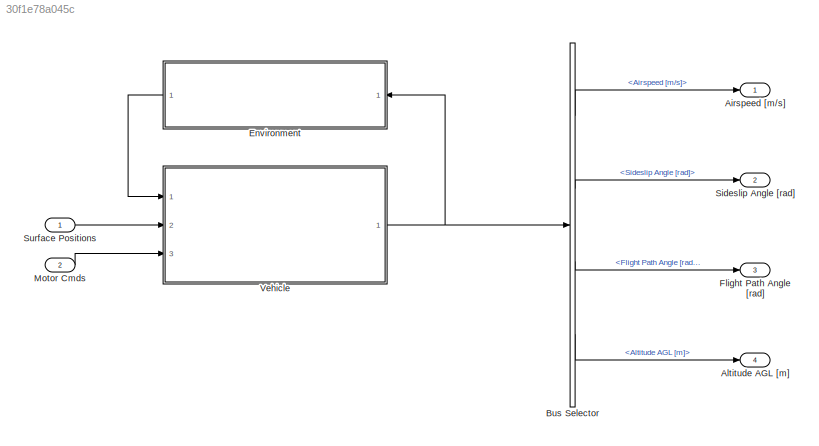
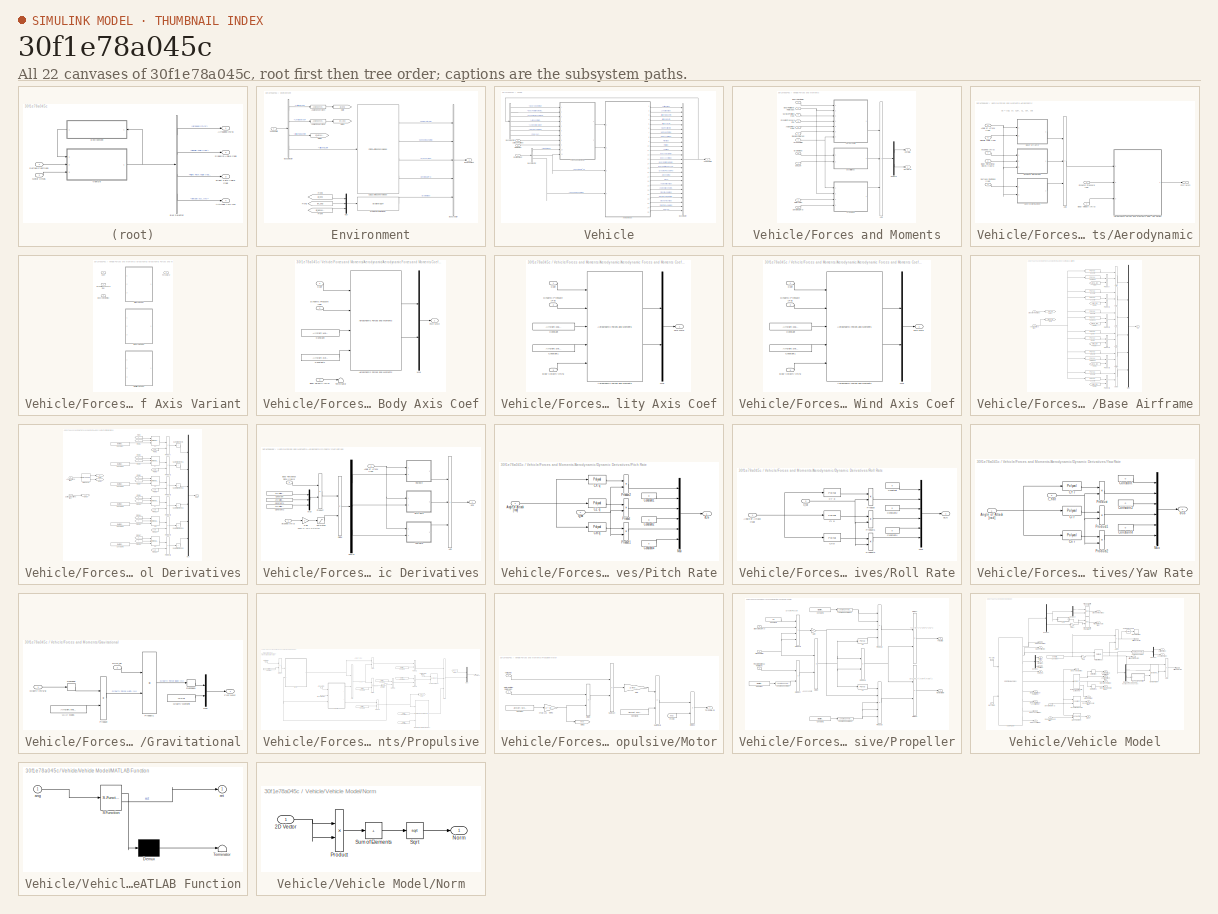
[diagram: thumbnail index - all 22 canvases of the model, root first then tree order]
MODEL slx_30f1e78a045c
KIND model
CONFIG AbsTol = auto
CONFIG EnableMultiTasking = off
CONFIG FixedStep = auto
CONFIG MaxStep = auto
CONFIG MinStep = auto
CONFIG RelTol = 1e-3
CONFIG SampleTimeConstraint = STIndependent
CONFIG SolverName = VariableStepAuto
CONFIG StartTime = 0.0
CONFIG StopTime = 10.0
BLOCK [Outport] Airspeed [m//s]
BLOCK [Outport] Altitude AGL [m]
  Port = 4
BLOCK [BusSelector] Bus Selector
  OutputSignals = Airspeed [m/s],Sideslip Angle [rad],Flight Path Angle [rad],Altitude AGL [m]
  Ports = [1, 4]
BLOCK [SubSystem] Environment
  Ports = [1, 1]
  RequestExecContextInheritance = off
BLOCK [Reference] Environment/Angle Conversion4  REF=aerolibconvert2/Angle Conversion
  Ports = [1, 1]
  SourceBlock = aerolibconvert2/Angle Conversion
  SourceProductBaseCode = AE
  SourceType = Angle Conversion
BLOCK [Reference] Environment/Angle Conversion5  REF=aerolibconvert2/Angle Conversion
  Ports = [1, 1]
  SourceBlock = aerolibconvert2/Angle Conversion
  SourceProductBaseCode = AE
  SourceType = Angle Conversion
BLOCK [BusCreator] Environment/Bus Creator
  DisplayOption = bar
  InheritFromInputs = on
  Inputs = 5
  Ports = [5, 1]
BLOCK [BusSelector] Environment/Bus Selector
  OutputSignals = Latitude [rad],Longitude [rad],Altitude WGS84 [m],Altitude MSL [m]
  Ports = [1, 4]
BLOCK [Reference] Environment/COESA Atmosphere Model  REF=aerolibatmos2/COESA Atmosphere Model
  Ports = [1, 4]
  SourceBlock = aerolibatmos2/COESA Atmosphere Model
  SourceProductBaseCode = AE
  SourceType = Atmosphere Model
BLOCK [Outport] Environment/Environment
BLOCK [From] Environment/From1
  GotoTag = lon_deg
BLOCK [From] Environment/From2
  GotoTag = lat_deg
BLOCK [From] Environment/From4
  GotoTag = alt_wgs84_m
BLOCK [Goto] Environment/Goto
  GotoTag = lat_deg
BLOCK [Goto] Environment/Goto1
  GotoTag = lon_deg
BLOCK [Goto] Environment/Goto2
  GotoTag = alt_wgs84_m
BLOCK [Mux] Environment/Mux
  DisplayOption = bar
  Inputs = 3
  Ports = [3, 1]
BLOCK [Inport] Environment/Vehicle State
BLOCK [GravityWGS84] Environment/WGS84 Gravity Model  
  Ports = [1, 1]
BLOCK [Outport] Flight Path Angle [rad]
  Port = 3
BLOCK [Inport] Motor Cmds
  Port = 2
  PortDimensions = Aircraft.Motor.nMotor
BLOCK [Outport] Sideslip Angle [rad]
  Port = 2
BLOCK [Inport] Surface Positions
BLOCK [SubSystem] Vehicle
  Ports = [3, 1]
  RequestExecContextInheritance = off
BLOCK [BusCreator] Vehicle/Bus Creator
  DisplayOption = bar
  InheritFromInputs = on
  Inputs = 25
  Ports = [25, 1]
BLOCK [BusSelector] Vehicle/Bus Selector
  OutputSignals = Gravity [m/s/s],Density [kg/m^3],Speed of Sound [m/s]
  Ports = [1, 3]
BLOCK [BusSelector] Vehicle/Bus Selector1
  OutputSignals = Body Velocity [m/s],Body Rotational Rate [rad/s],Dynamic Pressure [Pa],Airspeed [m/s],Angle of Attack [rad],Sideslip Angle [rad],DCM_be
  Ports = [1, 7]
BLOCK [Inport] Vehicle/Environment
BLOCK [SubSystem] Vehicle/Forces and Moments
  Ports = [11, 2]
  RequestExecContextInheritance = off
BLOCK [Sum] Vehicle/Forces and Moments/Add
  IconShape = rectangular
  Inputs = +++
  Ports = [3, 1]
BLOCK [SubSystem] Vehicle/Forces and Moments/Aerodynamic
  Ports = [7, 1]
  RequestExecContextInheritance = off
BLOCK [Sum] Vehicle/Forces and Moments/Aerodynamic/Add
  IconShape = rectangular
  Inputs = +++
  Ports = [3, 1]
BLOCK [SubSystem] Vehicle/Forces and Moments/Aerodynamic/Aerodynamic Forces and Moments Coef Axis Variant
  Ports = [3, 1]
  RequestExecContextInheritance = off
  Variant = on
BLOCK [SubSystem] Vehicle/Forces and Moments/Aerodynamic/Aerodynamic Forces and Moments Coef Axis Variant/Body Axis Coef
  Ports = [3, 1]
  RequestExecContextInheritance = off
  VariantControl = Aircraft.Aero.axis == 3
BLOCK [Reference] Vehicle/Forces and Moments/Aerodynamic/Aerodynamic Forces and Moments Coef Axis Variant/Body Axis Coef/Aerodynamic Forces and Moments   REF=aerolibadyn/Aerodynamic
Forces and Moments 
  Ports = [4, 2]
  SourceBlock = aerolibadyn/Aerodynamic\nForces and Moments
  SourceProductBaseCode = AE
  SourceType = Aerodynamic Forces and Moments
BLOCK [Inport] Vehicle/Forces and Moments/Aerodynamic/Aerodynamic Forces and Moments Coef Axis Variant/Body Axis Coef/Body Velocity [m//s]
  Port = 3
BLOCK [Inport] Vehicle/Forces and Moments/Aerodynamic/Aerodynamic Forces and Moments Coef Axis Variant/Body Axis Coef/Coef
BLOCK [Constant] Vehicle/Forces and Moments/Aerodynamic/Aerodynamic Forces and Moments Coef Axis Variant/Body Axis Coef/Constant
  Value = Aircraft.Mass.cg_m
BLOCK [Constant] Vehicle/Forces and Moments/Aerodynamic/Aerodynamic Forces and Moments Coef Axis Variant/Body Axis Coef/Constant1
  Value = Aircraft.Geom.cp_m
BLOCK [Inport] Vehicle/Forces and Moments/Aerodynamic/Aerodynamic Forces and Moments Coef Axis Variant/Body Axis Coef/Dynamic Pressure [Pa]
  Port = 2
BLOCK [Outport] Vehicle/Forces and Moments/Aerodynamic/Aerodynamic Forces and Moments Coef Axis Variant/Body Axis Coef/Fxyz Mxyz
BLOCK [Mux] Vehicle/Forces and Moments/Aerodynamic/Aerodynamic Forces and Moments Coef Axis Variant/Body Axis Coef/Mux
  DisplayOption = bar
  Inputs = 2
  Ports = [2, 1]
BLOCK [Terminator] Vehicle/Forces and Moments/Aerodynamic/Aerodynamic Forces and Moments Coef Axis Variant/Body Axis Coef/Terminator
BLOCK [Inport] Vehicle/Forces and Moments/Aerodynamic/Aerodynamic Forces and Moments Coef Axis Variant/Body Velocity [m//s]
  Port = 3
BLOCK [Inport] Vehicle/Forces and Moments/Aerodynamic/Aerodynamic Forces and Moments Coef Axis Variant/Coef
BLOCK [Inport] Vehicle/Forces and Moments/Aerodynamic/Aerodynamic Forces and Moments Coef Axis Variant/Dynamic Pressure [Pa]
  Port = 2
BLOCK [Outport] Vehicle/Forces and Moments/Aerodynamic/Aerodynamic Forces and Moments Coef Axis Variant/Fxyz Mxyz
BLOCK [SubSystem] Vehicle/Forces and Moments/Aerodynamic/Aerodynamic Forces and Moments Coef Axis Variant/Stability Axis Coef
  Ports = [3, 1]
  RequestExecContextInheritance = off
  VariantControl = Aircraft.Aero.axis == 2
BLOCK [Reference] Vehicle/Forces and Moments/Aerodynamic/Aerodynamic Forces and Moments Coef Axis Variant/Stability Axis Coef/Aerodynamic Forces and Moments   REF=aerolibadyn/Aerodynamic
Forces and Moments 
  Ports = [5, 2]
  SourceBlock = aerolibadyn/Aerodynamic\nForces and Moments
  SourceProductBaseCode = AE
  SourceType = Aerodynamic Forces and Moments
BLOCK [Inport] Vehicle/Forces and Moments/Aerodynamic/Aerodynamic Forces and Moments Coef Axis Variant/Stability Axis Coef/Body Velocity [m//s]
  Port = 3
BLOCK [Inport] Vehicle/Forces and Moments/Aerodynamic/Aerodynamic Forces and Moments Coef Axis Variant/Stability Axis Coef/Coef
BLOCK [Constant] Vehicle/Forces and Moments/Aerodynamic/Aerodynamic Forces and Moments Coef Axis Variant/Stability Axis Coef/Constant
  Value = Aircraft.Mass.cg_m
BLOCK [Constant] Vehicle/Forces and Moments/Aerodynamic/Aerodynamic Forces and Moments Coef Axis Variant/Stability Axis Coef/Constant1
  Value = Aircraft.Geom.cp_m
BLOCK [Inport] Vehicle/Forces and Moments/Aerodynamic/Aerodynamic Forces and Moments Coef Axis Variant/Stability Axis Coef/Dynamic Pressure [Pa]
  Port = 2
BLOCK [Outport] Vehicle/Forces and Moments/Aerodynamic/Aerodynamic Forces and Moments Coef Axis Variant/Stability Axis Coef/Fxyz Mxyz
BLOCK [Mux] Vehicle/Forces and Moments/Aerodynamic/Aerodynamic Forces and Moments Coef Axis Variant/Stability Axis Coef/Mux
  DisplayOption = bar
  Inputs = 2
  Ports = [2, 1]
BLOCK [SubSystem] Vehicle/Forces and Moments/Aerodynamic/Aerodynamic Forces and Moments Coef Axis Variant/Wind Axis Coef
  Ports = [3, 1]
  RequestExecContextInheritance = off
  VariantControl = Aircraft.Aero.axis == 1
BLOCK [Reference] Vehicle/Forces and Moments/Aerodynamic/Aerodynamic Forces and Moments Coef Axis Variant/Wind Axis Coef/Aerodynamic Forces and Moments   REF=aerolibadyn/Aerodynamic
Forces and Moments 
  Ports = [5, 2]
  SourceBlock = aerolibadyn/Aerodynamic\nForces and Moments
  SourceProductBaseCode = AE
  SourceType = Aerodynamic Forces and Moments
BLOCK [Inport] Vehicle/Forces and Moments/Aerodynamic/Aerodynamic Forces and Moments Coef Axis Variant/Wind Axis Coef/Body Velocity [m//s]
  Port = 3
BLOCK [Inport] Vehicle/Forces and Moments/Aerodynamic/Aerodynamic Forces and Moments Coef Axis Variant/Wind Axis Coef/Coef
BLOCK [Constant] Vehicle/Forces and Moments/Aerodynamic/Aerodynamic Forces and Moments Coef Axis Variant/Wind Axis Coef/Constant
  Value = Aircraft.Mass.cg_m
BLOCK [Constant] Vehicle/Forces and Moments/Aerodynamic/Aerodynamic Forces and Moments Coef Axis Variant/Wind Axis Coef/Constant1
  Value = Aircraft.Geom.cp_m
BLOCK [Inport] Vehicle/Forces and Moments/Aerodynamic/Aerodynamic Forces and Moments Coef Axis Variant/Wind Axis Coef/Dynamic Pressure [Pa]
  Port = 2
BLOCK [Outport] Vehicle/Forces and Moments/Aerodynamic/Aerodynamic Forces and Moments Coef Axis Variant/Wind Axis Coef/Fxyz Mxyz
BLOCK [Mux] Vehicle/Forces and Moments/Aerodynamic/Aerodynamic Forces and Moments Coef Axis Variant/Wind Axis Coef/Mux
  DisplayOption = bar
  Inputs = 2
  Ports = [2, 1]
BLOCK [Inport] Vehicle/Forces and Moments/Aerodynamic/Airspeed [m//s]
  Port = 7
BLOCK [Inport] Vehicle/Forces and Moments/Aerodynamic/Angle of Attack [rad]
  Port = 5
BLOCK [SubSystem] Vehicle/Forces and Moments/Aerodynamic/Base Airframe
  Ports = [2, 1]
  RequestExecContextInheritance = off
BLOCK [Sum] Vehicle/Forces and Moments/Aerodynamic/Base Airframe/Add
  IconShape = rectangular
  Ports = [2, 1]
BLOCK [Sum] Vehicle/Forces and Moments/Aerodynamic/Base Airframe/Add1
  IconShape = rectangular
  Ports = [2, 1]
BLOCK [Sum] Vehicle/Forces and Moments/Aerodynamic/Base Airframe/Add2
  IconShape = rectangular
  Ports = [2, 1]
BLOCK [Sum] Vehicle/Forces and Moments/Aerodynamic/Base Airframe/Add3
  IconShape = rectangular
  Ports = [2, 1]
BLOCK [Sum] Vehicle/Forces and Moments/Aerodynamic/Base Airframe/Add4
  IconShape = rectangular
  Ports = [2, 1]
BLOCK [Sum] Vehicle/Forces and Moments/Aerodynamic/Base Airframe/Add5
  IconShape = rectangular
  Ports = [2, 1]
BLOCK [Inport] Vehicle/Forces and Moments/Aerodynamic/Base Airframe/Angle of Attack [rad]
BLOCK [Outport] Vehicle/Forces and Moments/Aerodynamic/Base Airframe/C6
BLOCK [Polyval] Vehicle/Forces and Moments/Aerodynamic/Base Airframe/CX alpha
  Coefs = Aircraft.Aero.CX.alpha
BLOCK [Polyval] Vehicle/Forces and Moments/Aerodynamic/Base Airframe/CX zero
  Coefs = Aircraft.Aero.CX.zero
BLOCK [Polyval] Vehicle/Forces and Moments/Aerodynamic/Base Airframe/CY beta
  Coefs = Aircraft.Aero.CY.beta
BLOCK [Polyval] Vehicle/Forces and Moments/Aerodynamic/Base Airframe/CY zero
  Coefs = Aircraft.Aero.CY.zero
BLOCK [Polyval] Vehicle/Forces and Moments/Aerodynamic/Base Airframe/CZ alpha
  Coefs = Aircraft.Aero.CZ.alpha
BLOCK [Polyval] Vehicle/Forces and Moments/Aerodynamic/Base Airframe/CZ zero
  Coefs = Aircraft.Aero.CZ.zero
BLOCK [Polyval] Vehicle/Forces and Moments/Aerodynamic/Base Airframe/Cl beta
  Coefs = Aircraft.Aero.Cl.beta
BLOCK [Polyval] Vehicle/Forces and Moments/Aerodynamic/Base Airframe/Cl zero
  Coefs = Aircraft.Aero.Cl.zero
BLOCK [Polyval] Vehicle/Forces and Moments/Aerodynamic/Base Airframe/Cm alpha
  Coefs = Aircraft.Aero.Cm.alpha
BLOCK [Polyval] Vehicle/Forces and Moments/Aerodynamic/Base Airframe/Cm zero
  Coefs = Aircraft.Aero.Cm.zero
BLOCK [Polyval] Vehicle/Forces and Moments/Aerodynamic/Base Airframe/Cn beta
  Coefs = Aircraft.Aero.Cn.beta
BLOCK [Polyval] Vehicle/Forces and Moments/Aerodynamic/Base Airframe/Cn zero
  Coefs = Aircraft.Aero.Cn.zero
BLOCK [From] Vehicle/Forces and Moments/Aerodynamic/Base Airframe/From
  GotoTag = alpha_rad
BLOCK [From] Vehicle/Forces and Moments/Aerodynamic/Base Airframe/From1
  GotoTag = beta_rad
BLOCK [From] Vehicle/Forces and Moments/Aerodynamic/Base Airframe/From2
  GotoTag = alpha_rad
BLOCK [From] Vehicle/Forces and Moments/Aerodynamic/Base Airframe/From3
  GotoTag = alpha_rad
BLOCK [From] Vehicle/Forces and Moments/Aerodynamic/Base Airframe/From4
  GotoTag = beta_rad
BLOCK [From] Vehicle/Forces and Moments/Aerodynamic/Base Airframe/From5
  GotoTag = beta_rad
BLOCK [Goto] Vehicle/Forces and Moments/Aerodynamic/Base Airframe/Goto
  GotoTag = alpha_rad
BLOCK [Goto] Vehicle/Forces and Moments/Aerodynamic/Base Airframe/Goto1
  GotoTag = beta_rad
BLOCK [Mux] Vehicle/Forces and Moments/Aerodynamic/Base Airframe/Mux
  DisplayOption = bar
  Inputs = 6
  Ports = [6, 1]
BLOCK [Product] Vehicle/Forces and Moments/Aerodynamic/Base Airframe/Product
  Ports = [2, 1]
BLOCK [Product] Vehicle/Forces and Moments/Aerodynamic/Base Airframe/Product1
  Ports = [2, 1]
BLOCK [Product] Vehicle/Forces and Moments/Aerodynamic/Base Airframe/Product2
  Ports = [2, 1]
BLOCK [Product] Vehicle/Forces and Moments/Aerodynamic/Base Airframe/Product3
  Ports = [2, 1]
BLOCK [Product] Vehicle/Forces and Moments/Aerodynamic/Base Airframe/Product4
  Ports = [2, 1]
BLOCK [Product] Vehicle/Forces and Moments/Aerodynamic/Base Airframe/Product5
  Ports = [2, 1]
BLOCK [Inport] Vehicle/Forces and Moments/Aerodynamic/Base Airframe/Sideslip Angle [rad]
  Port = 2
BLOCK [Inport] Vehicle/Forces and Moments/Aerodynamic/Body Rotational Rates [rad//s]
  Port = 2
BLOCK [Inport] Vehicle/Forces and Moments/Aerodynamic/Body Velocity [m//s]
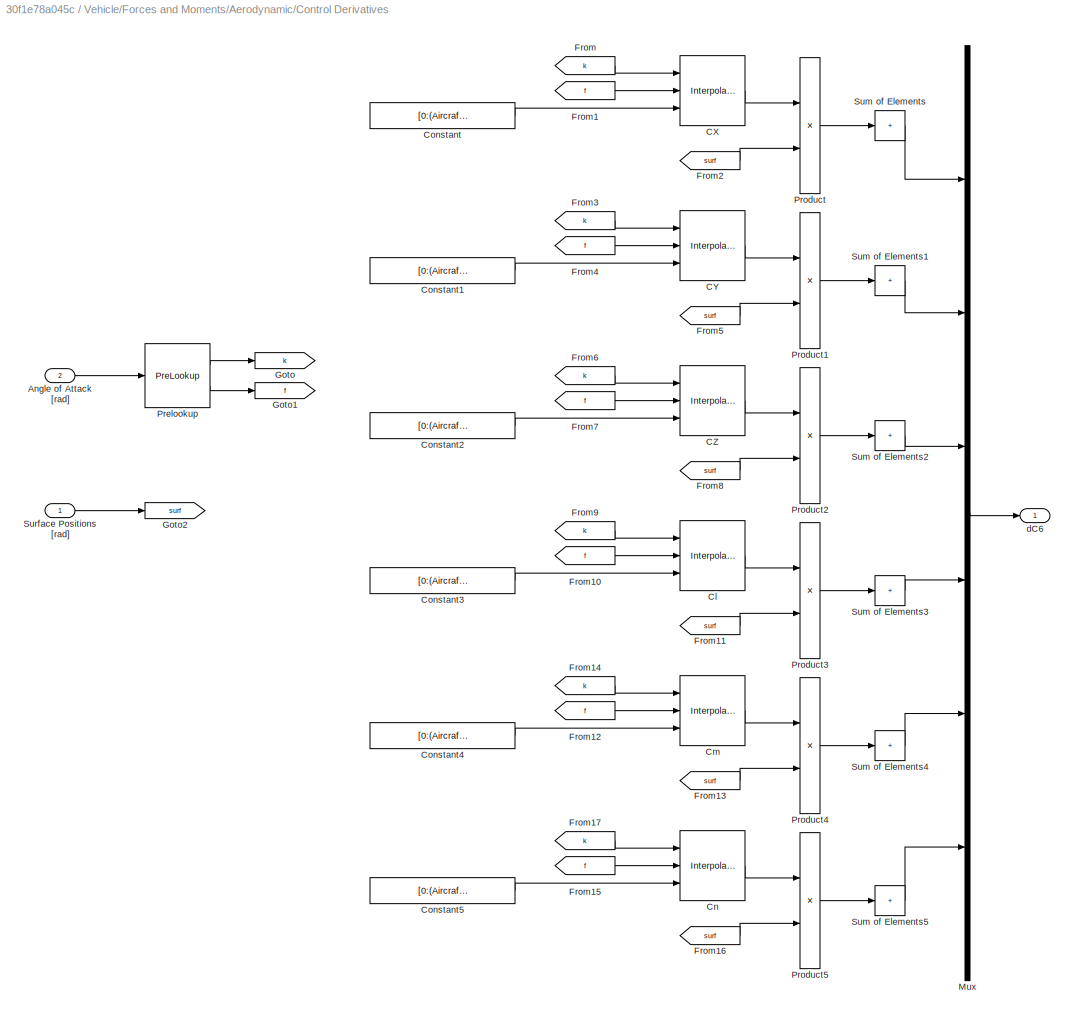
BLOCK [SubSystem] Vehicle/Forces and Moments/Aerodynamic/Control Derivatives
  Ports = [2, 1]
  RequestExecContextInheritance = off
BLOCK [Inport] Vehicle/Forces and Moments/Aerodynamic/Control Derivatives/Angle of Attack [rad]
  Port = 2
BLOCK [Interpolation_n-D] Vehicle/Forces and Moments/Aerodynamic/Control Derivatives/CX
  DiagnosticForOutOfRangeInput = Warning
  InputPortMap = u0,u1,u2
  IntermediateResultsDataTypeStr = Inherit: Inherit via internal rule
  InternalRulePriority = Speed
  NumSelectionDims = 1
  Ports = [3, 1]
  Table = Aircraft.Aero.CX.surf
BLOCK [Interpolation_n-D] Vehicle/Forces and Moments/Aerodynamic/Control Derivatives/CY
  DiagnosticForOutOfRangeInput = Warning
  InputPortMap = u0,u1,u2
  IntermediateResultsDataTypeStr = Inherit: Inherit via internal rule
  InternalRulePriority = Speed
  NumSelectionDims = 1
  Ports = [3, 1]
  Table = Aircraft.Aero.CY.surf
BLOCK [Interpolation_n-D] Vehicle/Forces and Moments/Aerodynamic/Control Derivatives/CZ
  DiagnosticForOutOfRangeInput = Warning
  InputPortMap = u0,u1,u2
  IntermediateResultsDataTypeStr = Inherit: Inherit via internal rule
  InternalRulePriority = Speed
  NumSelectionDims = 1
  Ports = [3, 1]
  Table = Aircraft.Aero.CZ.surf
BLOCK [Interpolation_n-D] Vehicle/Forces and Moments/Aerodynamic/Control Derivatives/Cl
  DiagnosticForOutOfRangeInput = Warning
  InputPortMap = u0,u1,u2
  IntermediateResultsDataTypeStr = Inherit: Inherit via internal rule
  InternalRulePriority = Speed
  NumSelectionDims = 1
  Ports = [3, 1]
  Table = Aircraft.Aero.Cl.surf
BLOCK [Interpolation_n-D] Vehicle/Forces and Moments/Aerodynamic/Control Derivatives/Cm
  DiagnosticForOutOfRangeInput = Warning
  InputPortMap = u0,u1,u2
  IntermediateResultsDataTypeStr = Inherit: Inherit via internal rule
  InternalRulePriority = Speed
  NumSelectionDims = 1
  Ports = [3, 1]
  Table = Aircraft.Aero.Cm.surf
BLOCK [Interpolation_n-D] Vehicle/Forces and Moments/Aerodynamic/Control Derivatives/Cn
  DiagnosticForOutOfRangeInput = Warning
  InputPortMap = u0,u1,u2
  IntermediateResultsDataTypeStr = Inherit: Inherit via internal rule
  InternalRulePriority = Speed
  NumSelectionDims = 1
  Ports = [3, 1]
  Table = Aircraft.Aero.Cn.surf
BLOCK [Constant] Vehicle/Forces and Moments/Aerodynamic/Control Derivatives/Constant
  Value = [0:(Aircraft.Surf.nSurf - 1)]
BLOCK [Constant] Vehicle/Forces and Moments/Aerodynamic/Control Derivatives/Constant1
  Value = [0:(Aircraft.Surf.nSurf - 1)]
BLOCK [Constant] Vehicle/Forces and Moments/Aerodynamic/Control Derivatives/Constant2
  Value = [0:(Aircraft.Surf.nSurf - 1)]
BLOCK [Constant] Vehicle/Forces and Moments/Aerodynamic/Control Derivatives/Constant3
  Value = [0:(Aircraft.Surf.nSurf - 1)]
BLOCK [Constant] Vehicle/Forces and Moments/Aerodynamic/Control Derivatives/Constant4
  Value = [0:(Aircraft.Surf.nSurf - 1)]
BLOCK [Constant] Vehicle/Forces and Moments/Aerodynamic/Control Derivatives/Constant5
  Value = [0:(Aircraft.Surf.nSurf - 1)]
BLOCK [From] Vehicle/Forces and Moments/Aerodynamic/Control Derivatives/From
  GotoTag = k
BLOCK [From] Vehicle/Forces and Moments/Aerodynamic/Control Derivatives/From1
  GotoTag = f
BLOCK [From] Vehicle/Forces and Moments/Aerodynamic/Control Derivatives/From10
  GotoTag = f
BLOCK [From] Vehicle/Forces and Moments/Aerodynamic/Control Derivatives/From11
  GotoTag = surf
BLOCK [From] Vehicle/Forces and Moments/Aerodynamic/Control Derivatives/From12
  GotoTag = f
BLOCK [From] Vehicle/Forces and Moments/Aerodynamic/Control Derivatives/From13
  GotoTag = surf
BLOCK [From] Vehicle/Forces and Moments/Aerodynamic/Control Derivatives/From14
  GotoTag = k
BLOCK [From] Vehicle/Forces and Moments/Aerodynamic/Control Derivatives/From15
  GotoTag = f
BLOCK [From] Vehicle/Forces and Moments/Aerodynamic/Control Derivatives/From16
  GotoTag = surf
BLOCK [From] Vehicle/Forces and Moments/Aerodynamic/Control Derivatives/From17
  GotoTag = k
BLOCK [From] Vehicle/Forces and Moments/Aerodynamic/Control Derivatives/From2
  GotoTag = surf
BLOCK [From] Vehicle/Forces and Moments/Aerodynamic/Control Derivatives/From3
  GotoTag = k
BLOCK [From] Vehicle/Forces and Moments/Aerodynamic/Control Derivatives/From4
  GotoTag = f
BLOCK [From] Vehicle/Forces and Moments/Aerodynamic/Control Derivatives/From5
  GotoTag = surf
BLOCK [From] Vehicle/Forces and Moments/Aerodynamic/Control Derivatives/From6
  GotoTag = k
BLOCK [From] Vehicle/Forces and Moments/Aerodynamic/Control Derivatives/From7
  GotoTag = f
BLOCK [From] Vehicle/Forces and Moments/Aerodynamic/Control Derivatives/From8
  GotoTag = surf
BLOCK [From] Vehicle/Forces and Moments/Aerodynamic/Control Derivatives/From9
  GotoTag = k
BLOCK [Goto] Vehicle/Forces and Moments/Aerodynamic/Control Derivatives/Goto
  GotoTag = k
BLOCK [Goto] Vehicle/Forces and Moments/Aerodynamic/Control Derivatives/Goto1
  GotoTag = f
BLOCK [Goto] Vehicle/Forces and Moments/Aerodynamic/Control Derivatives/Goto2
  GotoTag = surf
BLOCK [Mux] Vehicle/Forces and Moments/Aerodynamic/Control Derivatives/Mux
  DisplayOption = bar
  Inputs = 6
  Ports = [6, 1]
BLOCK [PreLookup] Vehicle/Forces and Moments/Aerodynamic/Control Derivatives/Prelookup
  BreakpointsData = Aircraft.Aero.CntrlEff.alpha
  ExtrapMethod = Linear
  InputPortMap = u0
  Ports = [1, 2]
BLOCK [Product] Vehicle/Forces and Moments/Aerodynamic/Control Derivatives/Product
  Ports = [2, 1]
BLOCK [Product] Vehicle/Forces and Moments/Aerodynamic/Control Derivatives/Product1
  Ports = [2, 1]
BLOCK [Product] Vehicle/Forces and Moments/Aerodynamic/Control Derivatives/Product2
  Ports = [2, 1]
BLOCK [Product] Vehicle/Forces and Moments/Aerodynamic/Control Derivatives/Product3
  Ports = [2, 1]
BLOCK [Product] Vehicle/Forces and Moments/Aerodynamic/Control Derivatives/Product4
  Ports = [2, 1]
BLOCK [Product] Vehicle/Forces and Moments/Aerodynamic/Control Derivatives/Product5
  Ports = [2, 1]
BLOCK [Sum] Vehicle/Forces and Moments/Aerodynamic/Control Derivatives/Sum of Elements
  IconShape = rectangular
  Inputs = +
  Ports = [1, 1]
BLOCK [Sum] Vehicle/Forces and Moments/Aerodynamic/Control Derivatives/Sum of Elements1
  IconShape = rectangular
  Inputs = +
  Ports = [1, 1]
BLOCK [Sum] Vehicle/Forces and Moments/Aerodynamic/Control Derivatives/Sum of Elements2
  IconShape = rectangular
  Inputs = +
  Ports = [1, 1]
BLOCK [Sum] Vehicle/Forces and Moments/Aerodynamic/Control Derivatives/Sum of Elements3
  IconShape = rectangular
  Inputs = +
  Ports = [1, 1]
BLOCK [Sum] Vehicle/Forces and Moments/Aerodynamic/Control Derivatives/Sum of Elements4
  IconShape = rectangular
  Inputs = +
  Ports = [1, 1]
BLOCK [Sum] Vehicle/Forces and Moments/Aerodynamic/Control Derivatives/Sum of Elements5
  IconShape = rectangular
  Inputs = +
  Ports = [1, 1]
BLOCK [Inport] Vehicle/Forces and Moments/Aerodynamic/Control Derivatives/Surface Positions [rad]
BLOCK [Outport] Vehicle/Forces and Moments/Aerodynamic/Control Derivatives/dC6
BLOCK [SubSystem] Vehicle/Forces and Moments/Aerodynamic/Dynamic Derivatives
  Ports = [3, 1]
  RequestExecContextInheritance = off
BLOCK [Sum] Vehicle/Forces and Moments/Aerodynamic/Dynamic Derivatives/Add
  IconShape = rectangular
  Inputs = +++
  Ports = [3, 1]
BLOCK [Inport] Vehicle/Forces and Moments/Aerodynamic/Dynamic Derivatives/Airspeed [m//s]
BLOCK [Inport] Vehicle/Forces and Moments/Aerodynamic/Dynamic Derivatives/Angle of Attack [rad]
  Port = 3
BLOCK [Inport] Vehicle/Forces and Moments/Aerodynamic/Dynamic Derivatives/Body Rotational Rate [rad//s]
  Port = 2
BLOCK [Constant] Vehicle/Forces and Moments/Aerodynamic/Dynamic Derivatives/Constant
  Value = Aircraft.Geom.b_m
BLOCK [Constant] Vehicle/Forces and Moments/Aerodynamic/Dynamic Derivatives/Constant1
  Value = Aircraft.Geom.c_m
BLOCK [Constant] Vehicle/Forces and Moments/Aerodynamic/Dynamic Derivatives/Constant2
  Value = Aircraft.Geom.b_m
BLOCK [Demux] Vehicle/Forces and Moments/Aerodynamic/Dynamic Derivatives/Demux
  Outputs = 3
  Ports = [1, 3]
BLOCK [Product] Vehicle/Forces and Moments/Aerodynamic/Dynamic Derivatives/Divide
  Inputs = */
  Ports = [2, 1]
BLOCK [Gain] Vehicle/Forces and Moments/Aerodynamic/Dynamic Derivatives/Gain
  Gain = 2
BLOCK [Mux] Vehicle/Forces and Moments/Aerodynamic/Dynamic Derivatives/Mux
  DisplayOption = bar
  Inputs = 3
  Ports = [3, 1]
BLOCK [SubSystem] Vehicle/Forces and Moments/Aerodynamic/Dynamic Derivatives/Pitch Rate
  Ports = [2, 1]
  RequestExecContextInheritance = off
BLOCK [Inport] Vehicle/Forces and Moments/Aerodynamic/Dynamic Derivatives/Pitch Rate/Angle of Attack [rad]
BLOCK [Polyval] Vehicle/Forces and Moments/Aerodynamic/Dynamic Derivatives/Pitch Rate/CX q
  Coefs = Aircraft.Aero.CX.q
BLOCK [Polyval] Vehicle/Forces and Moments/Aerodynamic/Dynamic Derivatives/Pitch Rate/CZ q
  Coefs = Aircraft.Aero.CZ.q
BLOCK [Polyval] Vehicle/Forces and Moments/Aerodynamic/Dynamic Derivatives/Pitch Rate/Cm q
  Coefs = Aircraft.Aero.Cm.q
BLOCK [Constant] Vehicle/Forces and Moments/Aerodynamic/Dynamic Derivatives/Pitch Rate/Constant1
  Value = 0
BLOCK [Constant] Vehicle/Forces and Moments/Aerodynamic/Dynamic Derivatives/Pitch Rate/Constant2
  Value = 0
BLOCK [Constant] Vehicle/Forces and Moments/Aerodynamic/Dynamic Derivatives/Pitch Rate/Constant4
  Value = 0
BLOCK [Mux] Vehicle/Forces and Moments/Aerodynamic/Dynamic Derivatives/Pitch Rate/Mux
  DisplayOption = bar
  Inputs = 6
  Ports = [6, 1]
BLOCK [Product] Vehicle/Forces and Moments/Aerodynamic/Dynamic Derivatives/Pitch Rate/Product
  Ports = [2, 1]
BLOCK [Product] Vehicle/Forces and Moments/Aerodynamic/Dynamic Derivatives/Pitch Rate/Product1
  Ports = [2, 1]
BLOCK [Product] Vehicle/Forces and Moments/Aerodynamic/Dynamic Derivatives/Pitch Rate/Product2
  Ports = [2, 1]
BLOCK [Outport] Vehicle/Forces and Moments/Aerodynamic/Dynamic Derivatives/Pitch Rate/dC6
BLOCK [Inport] Vehicle/Forces and Moments/Aerodynamic/Dynamic Derivatives/Pitch Rate/q_hat
  Port = 2
BLOCK [Product] Vehicle/Forces and Moments/Aerodynamic/Dynamic Derivatives/Product
  Ports = [2, 1]
BLOCK [SubSystem] Vehicle/Forces and Moments/Aerodynamic/Dynamic Derivatives/Roll Rate
  Ports = [2, 1]
  RequestExecContextInheritance = off
BLOCK [Inport] Vehicle/Forces and Moments/Aerodynamic/Dynamic Derivatives/Roll Rate/Angle of Attack [rad]
BLOCK [Polyval] Vehicle/Forces and Moments/Aerodynamic/Dynamic Derivatives/Roll Rate/CY p
  Coefs = Aircraft.Aero.CY.p
BLOCK [Polyval] Vehicle/Forces and Moments/Aerodynamic/Dynamic Derivatives/Roll Rate/Cl p
  Coefs = Aircraft.Aero.Cl.p
BLOCK [Polyval] Vehicle/Forces and Moments/Aerodynamic/Dynamic Derivatives/Roll Rate/Cn p
  Coefs = Aircraft.Aero.Cn.p
BLOCK [Constant] Vehicle/Forces and Moments/Aerodynamic/Dynamic Derivatives/Roll Rate/Constant
  Value = 0
BLOCK [Constant] Vehicle/Forces and Moments/Aerodynamic/Dynamic Derivatives/Roll Rate/Constant2
  Value = 0
BLOCK [Constant] Vehicle/Forces and Moments/Aerodynamic/Dynamic Derivatives/Roll Rate/Constant4
  Value = 0
BLOCK [Mux] Vehicle/Forces and Moments/Aerodynamic/Dynamic Derivatives/Roll Rate/Mux
  DisplayOption = bar
  Inputs = 6
  Ports = [6, 1]
BLOCK [Product] Vehicle/Forces and Moments/Aerodynamic/Dynamic Derivatives/Roll Rate/Product
  Ports = [2, 1]
BLOCK [Product] Vehicle/Forces and Moments/Aerodynamic/Dynamic Derivatives/Roll Rate/Product1
  Ports = [2, 1]
BLOCK [Product] Vehicle/Forces and Moments/Aerodynamic/Dynamic Derivatives/Roll Rate/Product2
  Ports = [2, 1]
BLOCK [Outport] Vehicle/Forces and Moments/Aerodynamic/Dynamic Derivatives/Roll Rate/dC6
BLOCK [Inport] Vehicle/Forces and Moments/Aerodynamic/Dynamic Derivatives/Roll Rate/p_hat
  Port = 2
BLOCK [Saturate] Vehicle/Forces and Moments/Aerodynamic/Dynamic Derivatives/Saturation
  LowerLimit = 1e-3
  UpperLimit = inf
BLOCK [SubSystem] Vehicle/Forces and Moments/Aerodynamic/Dynamic Derivatives/Yaw Rate
  Ports = [2, 1]
  RequestExecContextInheritance = off
BLOCK [Inport] Vehicle/Forces and Moments/Aerodynamic/Dynamic Derivatives/Yaw Rate/Angle of Attack [rad]
BLOCK [Polyval] Vehicle/Forces and Moments/Aerodynamic/Dynamic Derivatives/Yaw Rate/CY r
  Coefs = Aircraft.Aero.CY.r
BLOCK [Polyval] Vehicle/Forces and Moments/Aerodynamic/Dynamic Derivatives/Yaw Rate/Cl r
  Coefs = Aircraft.Aero.Cl.r
BLOCK [Polyval] Vehicle/Forces and Moments/Aerodynamic/Dynamic Derivatives/Yaw Rate/Cn r
  Coefs = Aircraft.Aero.Cn.r
BLOCK [Constant] Vehicle/Forces and Moments/Aerodynamic/Dynamic Derivatives/Yaw Rate/Constant
  Value = 0
BLOCK [Constant] Vehicle/Forces and Moments/Aerodynamic/Dynamic Derivatives/Yaw Rate/Constant2
  Value = 0
BLOCK [Constant] Vehicle/Forces and Moments/Aerodynamic/Dynamic Derivatives/Yaw Rate/Constant4
  Value = 0
BLOCK [Mux] Vehicle/Forces and Moments/Aerodynamic/Dynamic Derivatives/Yaw Rate/Mux
  DisplayOption = bar
  Inputs = 6
  Ports = [6, 1]
BLOCK [Product] Vehicle/Forces and Moments/Aerodynamic/Dynamic Derivatives/Yaw Rate/Product
  Ports = [2, 1]
BLOCK [Product] Vehicle/Forces and Moments/Aerodynamic/Dynamic Derivatives/Yaw Rate/Product1
  Ports = [2, 1]
BLOCK [Product] Vehicle/Forces and Moments/Aerodynamic/Dynamic Derivatives/Yaw Rate/Product2
  Ports = [2, 1]
BLOCK [Outport] Vehicle/Forces and Moments/Aerodynamic/Dynamic Derivatives/Yaw Rate/dC6
BLOCK [Inport] Vehicle/Forces and Moments/Aerodynamic/Dynamic Derivatives/Yaw Rate/r_hat
  Port = 2
BLOCK [Outport] Vehicle/Forces and Moments/Aerodynamic/Dynamic Derivatives/dC6
BLOCK [Inport] Vehicle/Forces and Moments/Aerodynamic/Dynamic Pressure [Pa]
  Port = 4
BLOCK [Outport] Vehicle/Forces and Moments/Aerodynamic/Fxyz Mxzy
BLOCK [Inport] Vehicle/Forces and Moments/Aerodynamic/Sideslip Angle [rad]
  Port = 6
BLOCK [Inport] Vehicle/Forces and Moments/Aerodynamic/Surface Positions [rad]
  Port = 3
BLOCK [Inport] Vehicle/Forces and Moments/Airspeed [m//s]
  Port = 4
BLOCK [Inport] Vehicle/Forces and Moments/Angle of Attack [rad]
  Port = 5
BLOCK [Inport] Vehicle/Forces and Moments/Body Rotational Rate [rad//s]
  Port = 2
BLOCK [Inport] Vehicle/Forces and Moments/Body Velocity [m//s]
BLOCK [Inport] Vehicle/Forces and Moments/DCM_be
  Port = 7
BLOCK [Demux] Vehicle/Forces and Moments/Demux3
  Outputs = 2
  Ports = [1, 2]
BLOCK [Inport] Vehicle/Forces and Moments/Density [kg//m^3]
  Port = 11
BLOCK [Inport] Vehicle/Forces and Moments/Dynamic Pressure [Pa]
  Port = 3
BLOCK [Outport] Vehicle/Forces and Moments/Fxyz [N]
BLOCK [SubSystem] Vehicle/Forces and Moments/Gravitational
  Ports = [2, 1]
  RequestExecContextInheritance = off
BLOCK [Inport] Vehicle/Forces and Moments/Gravitational/DCM_be
  Port = 2
BLOCK [Outport] Vehicle/Forces and Moments/Gravitational/Fxyz Mxyz
BLOCK [Constant] Vehicle/Forces and Moments/Gravitational/Gravity Moment
  Value = [0 0 0]
BLOCK [Inport] Vehicle/Forces and Moments/Gravitational/Gravity [m//s//s]
BLOCK [Mux] Vehicle/Forces and Moments/Gravitational/Mux
  DisplayOption = bar
  Inputs = 2
  Ports = [2, 1]
BLOCK [Product] Vehicle/Forces and Moments/Gravitational/Product
  Ports = [2, 1]
BLOCK [Product] Vehicle/Forces and Moments/Gravitational/Product1
  Multiplication = Matrix(*)
  Ports = [2, 1]
BLOCK [Reshape] Vehicle/Forces and Moments/Gravitational/Reshape
  OutputDimensionality = Column vector (2-D)
  Ports = [1, 1]
BLOCK [Reshape] Vehicle/Forces and Moments/Gravitational/Reshape1
  Ports = [1, 1]
BLOCK [Constant] Vehicle/Forces and Moments/Gravitational/UAV Mass
  Value = Aircraft.Mass.mass_kg
BLOCK [Inport] Vehicle/Forces and Moments/Gravity [m//s//s]
  Port = 10
BLOCK [Inport] Vehicle/Forces and Moments/Motor Cmds
  Port = 9
BLOCK [Outport] Vehicle/Forces and Moments/Mxyz [N-m]
  Port = 2
BLOCK [SubSystem] Vehicle/Forces and Moments/Propulsive
  Ports = [4, 1]
  RequestExecContextInheritance = off
BLOCK [Reference] Vehicle/Forces and Moments/Propulsive/3x3 Cross Product  REF=sharedutil/3x3 Cross Product
  Ports = [2, 1]
  SourceBlock = sharedutil/3x3 Cross Product
  SourceProductBaseCode = AE,PW,MT,UV,VE,VP
  SourceType = CrossProduct
BLOCK [Sum] Vehicle/Forces and Moments/Propulsive/Add
  IconShape = rectangular
  Inputs = +-
  Ports = [2, 1]
BLOCK [Sum] Vehicle/Forces and Moments/Propulsive/Add1
  IconShape = rectangular
  Ports = [2, 1]
BLOCK [Sum] Vehicle/Forces and Moments/Propulsive/Add2
  IconShape = rectangular
  Inputs = +++
  Ports = [3, 1]
BLOCK [Inport] Vehicle/Forces and Moments/Propulsive/Air Density [kg//m^3]
  Port = 4
BLOCK [Inport] Vehicle/Forces and Moments/Propulsive/Airspeed [m//s]
BLOCK [Constant] Vehicle/Forces and Moments/Propulsive/Constant
  Value = Aircraft.Battery.voltage
BLOCK [Constant] Vehicle/Forces and Moments/Propulsive/Constant3
  Value = Aircraft.Motor.align
BLOCK [Constant] Vehicle/Forces and Moments/Propulsive/Constant4
  Value = Aircraft.Motor.align
BLOCK [Constant] Vehicle/Forces and Moments/Propulsive/Constant5
  Value = Aircraft.Motor.align
BLOCK [Constant] Vehicle/Forces and Moments/Propulsive/Constant6
  Value = Aircraft.Geom.cp_m
BLOCK [Constant] Vehicle/Forces and Moments/Propulsive/Constant7
  Value = Aircraft.Motor.pos_m
BLOCK [Constant] Vehicle/Forces and Moments/Propulsive/Constant8
  Value = Aircraft.Prop.Jmp_kgm2
BLOCK [Constant] Vehicle/Forces and Moments/Propulsive/Constant9
  Value = Aircraft.Prop.Jmp_kgm2
BLOCK [Product] Vehicle/Forces and Moments/Propulsive/Divide
  Inputs = */
  Ports = [2, 1]
BLOCK [From] Vehicle/Forces and Moments/Propulsive/From3
  GotoTag = Fxyz
BLOCK [Outport] Vehicle/Forces and Moments/Propulsive/Fxyz Mxyz
BLOCK [Goto] Vehicle/Forces and Moments/Propulsive/Goto1
  GotoTag = Fxyz
BLOCK [Integrator] Vehicle/Forces and Moments/Propulsive/Integrator
  InitialCondition = InitCond.engine_speed_radps
  Ports = [1, 1]
BLOCK [Reference] Vehicle/Forces and Moments/Propulsive/Moments about CG due to Forces  REF=aerolibbdyn/Moments about CG 
due to Forces
  Ports = [3, 1]
  SourceBlock = aerolibbdyn/Moments about CG \ndue to Forces
  SourceProductBaseCode = AE
  SourceType = Moments About CG Due To Forces
BLOCK [SubSystem] Vehicle/Forces and Moments/Propulsive/Motor
  Ports = [2, 1]
  RequestExecContextInheritance = off
BLOCK [Inport] Vehicle/Forces and Moments/Propulsive/Motor Cmds
  Port = 3
BLOCK [Constant] Vehicle/Forces and Moments/Propulsive/Motor/Constant
  Value = Aircraft.Motor.kv
BLOCK [Constant] Vehicle/Forces and Moments/Propulsive/Motor/Constant1
  Value = Aircraft.Motor.io
BLOCK [Product] Vehicle/Forces and Moments/Propulsive/Motor/Divide
  Inputs = */
  Ports = [2, 1]
BLOCK [Product] Vehicle/Forces and Moments/Propulsive/Motor/Divide2
  Inputs = */
  Ports = [2, 1]
BLOCK [From] Vehicle/Forces and Moments/Propulsive/Motor/From2
  GotoTag = KvSI
BLOCK [Gain] Vehicle/Forces and Moments/Propulsive/Motor/Gain
  Gain = 1/Aircraft.Motor.r
BLOCK [Gain] Vehicle/Forces and Moments/Propulsive/Motor/Gain2
  Gain = 2 * pi / 60
BLOCK [Goto] Vehicle/Forces and Moments/Propulsive/Motor/Goto2
  GotoTag = KvSI
BLOCK [Inport] Vehicle/Forces and Moments/Propulsive/Motor/Motor Rotation Rate [rad//s]
  Port = 2
BLOCK [Sum] Vehicle/Forces and Moments/Propulsive/Motor/Subtract
  IconShape = rectangular
  Inputs = +-
  Ports = [2, 1]
BLOCK [Sum] Vehicle/Forces and Moments/Propulsive/Motor/Subtract1
  IconShape = rectangular
  Inputs = +-
  Ports = [2, 1]
BLOCK [Outport] Vehicle/Forces and Moments/Propulsive/Motor/Torque [N-m]
BLOCK [Inport] Vehicle/Forces and Moments/Propulsive/Motor/Voltage [V]
BLOCK [Mux] Vehicle/Forces and Moments/Propulsive/Mux2
  DisplayOption = bar
  Inputs = 2
  Ports = [2, 1]
BLOCK [Product] Vehicle/Forces and Moments/Propulsive/Product
  Ports = [2, 1]
BLOCK [Product] Vehicle/Forces and Moments/Propulsive/Product1
  Ports = [2, 1]
BLOCK [Product] Vehicle/Forces and Moments/Propulsive/Product2
  Ports = [2, 1]
BLOCK [Product] Vehicle/Forces and Moments/Propulsive/Product4
  Ports = [2, 1]
BLOCK [Product] Vehicle/Forces and Moments/Propulsive/Product5
  Ports = [2, 1]
BLOCK [SubSystem] Vehicle/Forces and Moments/Propulsive/Propeller
  Ports = [3, 2]
  RequestExecContextInheritance = off
BLOCK [Inport] Vehicle/Forces and Moments/Propulsive/Propeller/Air Density [kg//m^3]
  Port = 2
BLOCK [Inport] Vehicle/Forces and Moments/Propulsive/Propeller/Airspeed [m//s]
BLOCK [Polyval] Vehicle/Forces and Moments/Propulsive/Propeller/CP
  Coefs = Aircraft.prop.cp
BLOCK [Polyval] Vehicle/Forces and Moments/Propulsive/Propeller/CT
  Coefs = Aircraft.prop.ct
BLOCK [Constant] Vehicle/Forces and Moments/Propulsive/Propeller/Constant
  Value = Aircraft.Prop.dia_in/2
BLOCK [Constant] Vehicle/Forces and Moments/Propulsive/Propeller/Constant1
  Value = 1/2
BLOCK [Constant] Vehicle/Forces and Moments/Propulsive/Propeller/Constant2
  Value = Aircraft.Prop.dia_in/2
BLOCK [Constant] Vehicle/Forces and Moments/Propulsive/Propeller/Constant3
  Value = Aircraft.Prop.dia_in/2
BLOCK [Product] Vehicle/Forces and Moments/Propulsive/Propeller/Divide
  Inputs = */
  Ports = [2, 1]
BLOCK [Product] Vehicle/Forces and Moments/Propulsive/Propeller/Divide1
  Inputs = */
  Ports = [2, 1]
BLOCK [Product] Vehicle/Forces and Moments/Propulsive/Propeller/Divide2
  Inputs = /*
  Ports = [2, 1]
BLOCK [Gain] Vehicle/Forces and Moments/Propulsive/Propeller/Gain
  Gain = pi
BLOCK [Reference] Vehicle/Forces and Moments/Propulsive/Propeller/Length Conversion  REF=aerolibconvert2/Length Conversion
  Ports = [1, 1]
  SourceBlock = aerolibconvert2/Length Conversion
  SourceProductBaseCode = AE
  SourceType = Length Conversion
BLOCK [Reference] Vehicle/Forces and Moments/Propulsive/Propeller/Length Conversion1  REF=aerolibconvert2/Length Conversion
  Ports = [1, 1]
  SourceBlock = aerolibconvert2/Length Conversion
  SourceProductBaseCode = AE
  SourceType = Length Conversion
BLOCK [Reference] Vehicle/Forces and Moments/Propulsive/Propeller/Length Conversion2  REF=aerolibconvert2/Length Conversion
  Ports = [1, 1]
  SourceBlock = aerolibconvert2/Length Conversion
  SourceProductBaseCode = AE
  SourceType = Length Conversion
BLOCK [Outport] Vehicle/Forces and Moments/Propulsive/Propeller/Moment [N-m}
BLOCK [Product] Vehicle/Forces and Moments/Propulsive/Propeller/Product
  Ports = [2, 1]
BLOCK [Product] Vehicle/Forces and Moments/Propulsive/Propeller/Product1
  Inputs = 4
  Ports = [4, 1]
BLOCK [Product] Vehicle/Forces and Moments/Propulsive/Propeller/Product2
  Inputs = 4
  Ports = [4, 1]
BLOCK [Product] Vehicle/Forces and Moments/Propulsive/Propeller/Product3
  Inputs = 5
  Ports = [5, 1]
BLOCK [Product] Vehicle/Forces and Moments/Propulsive/Propeller/Product4
  Ports = [2, 1]
BLOCK [Inport] Vehicle/Forces and Moments/Propulsive/Propeller/Propeller Rotational Rate [rad//s]
  Port = 3
BLOCK [Outport] Vehicle/Forces and Moments/Propulsive/Propeller/Thrust [N]
  Port = 2
BLOCK [Inport] Vehicle/Forces and Moments/Propulsive/Rotational Rate [rad//s]
  Port = 2
BLOCK [Inport] Vehicle/Forces and Moments/Sideslip Angle [rad]
  Port = 6
BLOCK [Inport] Vehicle/Forces and Moments/Surface Positions [rad]
  Port = 8
BLOCK [Inport] Vehicle/Motor Cmds
  Port = 3
BLOCK [Inport] Vehicle/Surface Positions
  Port = 2
  PortDimensions = Aircraft.Surf.nSurf
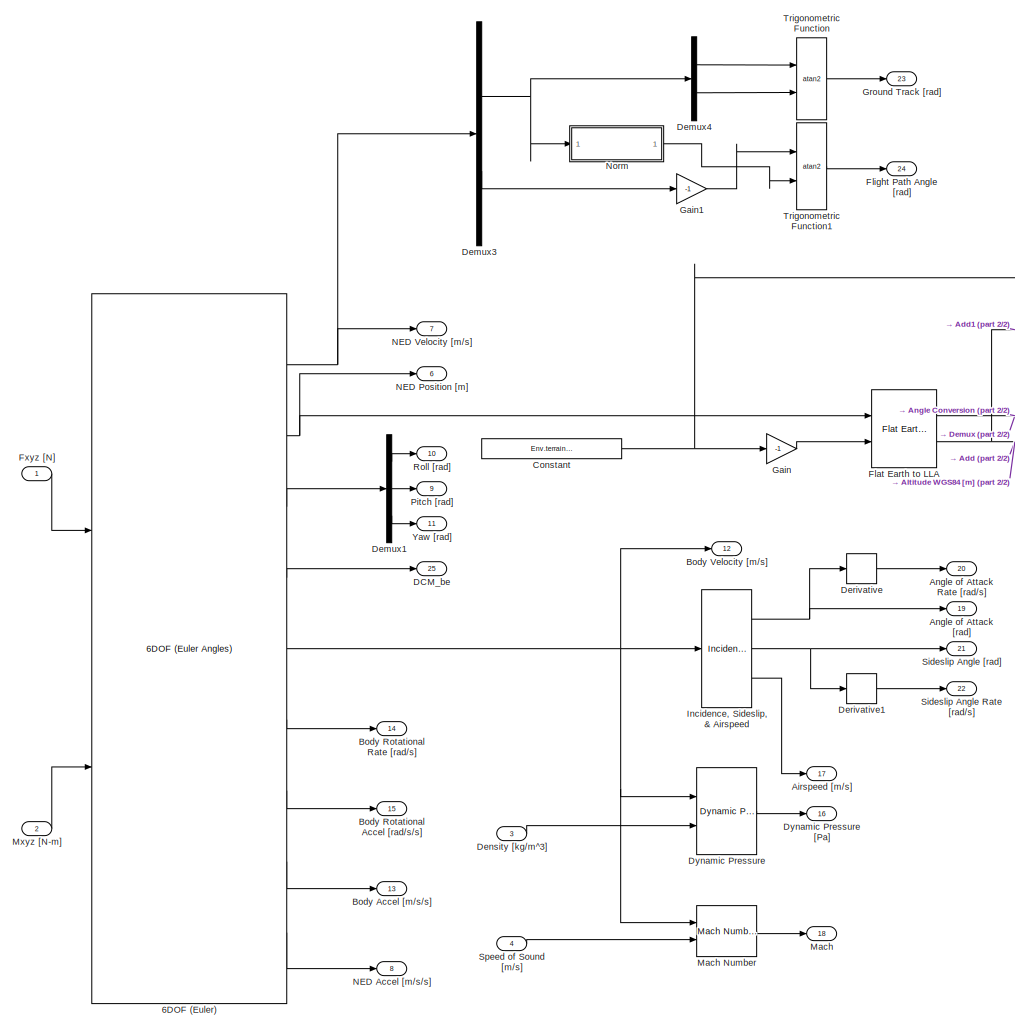
[diagram: Vehicle/Vehicle Model - part 1/2, left side, full height]
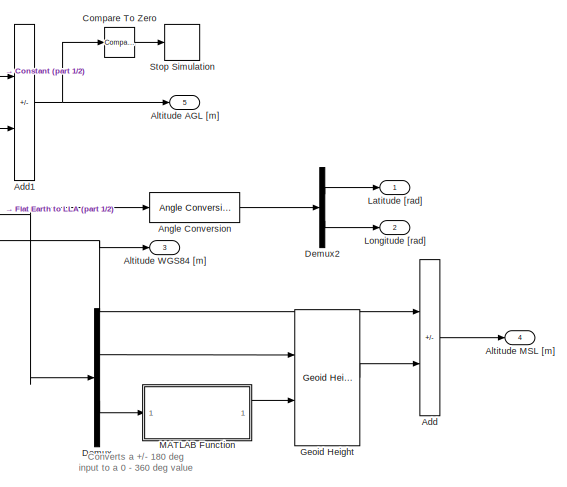
[diagram: Vehicle/Vehicle Model - part 2/2, middle right region]
BLOCK [SubSystem] Vehicle/Vehicle Model
  Ports = [4, 25]
  RequestExecContextInheritance = off
BLOCK [Reference] Vehicle/Vehicle Model/6DOF (Euler)  REF=shared6dof/6DOF (Euler Angles)
  Ports = [2, 9]
  SourceBlock = shared6dof/6DOF (Euler Angles)
  SourceProductBaseCode = AE,PW,MT,UV,VE,VP
  SourceType = 6DOF EoM (Body Axis)
BLOCK [Sum] Vehicle/Vehicle Model/Add
  IconShape = rectangular
  Inputs = +-
  Ports = [2, 1]
BLOCK [Sum] Vehicle/Vehicle Model/Add1
  IconShape = rectangular
  Inputs = -+
  Ports = [2, 1]
BLOCK [Outport] Vehicle/Vehicle Model/Airspeed [m//s]
  Port = 17
BLOCK [Outport] Vehicle/Vehicle Model/Altitude AGL [m]
  Port = 5
BLOCK [Outport] Vehicle/Vehicle Model/Altitude MSL [m]
  Port = 4
BLOCK [Outport] Vehicle/Vehicle Model/Altitude WGS84 [m]
  Port = 3
BLOCK [Reference] Vehicle/Vehicle Model/Angle Conversion  REF=aerolibconvert2/Angle Conversion
  Ports = [1, 1]
  SourceBlock = aerolibconvert2/Angle Conversion
  SourceProductBaseCode = AE
  SourceType = Angle Conversion
BLOCK [Outport] Vehicle/Vehicle Model/Angle of Attack Rate [rad//s]
  Port = 20
BLOCK [Outport] Vehicle/Vehicle Model/Angle of Attack [rad]
  Port = 19
BLOCK [Outport] Vehicle/Vehicle Model/Body Accel [m//s//s]
  Port = 13
BLOCK [Outport] Vehicle/Vehicle Model/Body Rotational Accel [rad//s//s]
  Port = 15
BLOCK [Outport] Vehicle/Vehicle Model/Body Rotational Rate [rad//s]
  Port = 14
BLOCK [Outport] Vehicle/Vehicle Model/Body Velocity [m//s]
  Port = 12
BLOCK [Reference] Vehicle/Vehicle Model/Compare To Zero  REF=simulink/Logic and Bit
Operations/Compare
To Zero
  Ports = [1, 1]
  SourceBlock = simulink/Logic and Bit\nOperations/Compare\nTo Zero
  SourceProductBaseCode = SL
  SourceType = Compare To Zero
BLOCK [Constant] Vehicle/Vehicle Model/Constant
  Value = Env.terrain_alt_wgs84
BLOCK [Outport] Vehicle/Vehicle Model/DCM_be
  Port = 25
BLOCK [Demux] Vehicle/Vehicle Model/Demux
  Outputs = 2
  Ports = [1, 2]
BLOCK [Demux] Vehicle/Vehicle Model/Demux1
  Outputs = 3
  Ports = [1, 3]
BLOCK [Demux] Vehicle/Vehicle Model/Demux2
  Outputs = 2
  Ports = [1, 2]
BLOCK [Demux] Vehicle/Vehicle Model/Demux3
  Outputs = [2 1]
  Ports = [1, 2]
BLOCK [Demux] Vehicle/Vehicle Model/Demux4
  Outputs = 2
  Ports = [1, 2]
BLOCK [Inport] Vehicle/Vehicle Model/Density [kg//m^3]
  Port = 3
BLOCK [Derivative] Vehicle/Vehicle Model/Derivative
BLOCK [Derivative] Vehicle/Vehicle Model/Derivative1
BLOCK [Reference] Vehicle/Vehicle Model/Dynamic Pressure  REF=aerolibasang/Dynamic Pressure
  Ports = [2, 1]
  SourceBlock = aerolibasang/Dynamic Pressure
  SourceProductBaseCode = AE
  SourceType = Dynamic Pressure
BLOCK [Outport] Vehicle/Vehicle Model/Dynamic Pressure [Pa]
  Port = 16
BLOCK [Reference] Vehicle/Vehicle Model/Flat Earth to LLA  REF=aerolibtransform2/Flat Earth to LLA
  Ports = [2, 2]
  SourceBlock = aerolibtransform2/Flat Earth to LLA
  SourceProductBaseCode = AE
  SourceType = Flat Earth to LLA
BLOCK [Outport] Vehicle/Vehicle Model/Flight Path Angle [rad]
  Port = 24
BLOCK [Inport] Vehicle/Vehicle Model/Fxyz [N]
BLOCK [Gain] Vehicle/Vehicle Model/Gain
  Gain = -1
BLOCK [Gain] Vehicle/Vehicle Model/Gain1
  Gain = -1
BLOCK [Reference] Vehicle/Vehicle Model/Geoid Height  REF=aerolibgravity2/Geoid Height
  Ports = [2, 1]
  SourceBlock = aerolibgravity2/Geoid Height
  SourceProductBaseCode = AE
  SourceType = Geoid Height
BLOCK [Outport] Vehicle/Vehicle Model/Ground Track [rad]
  Port = 23
BLOCK [Reference] Vehicle/Vehicle Model/Incidence, Sideslip, & Airspeed  REF=aerolibasang/Incidence, Sideslip,
& Airspeed
  Ports = [1, 3]
  SourceBlock = aerolibasang/Incidence, Sideslip,\n& Airspeed
  SourceProductBaseCode = AE
  SourceType = Incidence,Sideslip,&Airspeed
BLOCK [Outport] Vehicle/Vehicle Model/Latitude [rad]
BLOCK [Outport] Vehicle/Vehicle Model/Longitude [rad]
  Port = 2
BLOCK [SubSystem] Vehicle/Vehicle Model/MATLAB Function
  ErrorFcn = Stateflow.Translate.translate
  PermitHierarchicalResolution = ExplicitOnly
  Ports = [1, 1]
  RequestExecContextInheritance = off
  SFBlockType = MATLAB Function
  TreatAsAtomicUnit = on
BLOCK [Demux] Vehicle/Vehicle Model/MATLAB Function/ Demux 
  Outputs = 1
  Ports = [1, 1]
BLOCK [S-Function] Vehicle/Vehicle Model/MATLAB Function/ SFunction 
  EnableBusSupport = on
  FunctionName = sf_sfun
  PortCounts = [1 2]
  Ports = [1, 2]
  SFcnIsStateOwnerBlock = off
  SFunctionDeploymentMode = off
  Tag = Stateflow S-Function 2
BLOCK [Terminator] Vehicle/Vehicle Model/MATLAB Function/ Terminator 
BLOCK [Inport] Vehicle/Vehicle Model/MATLAB Function/ang
BLOCK [Outport] Vehicle/Vehicle Model/MATLAB Function/ret
BLOCK [Outport] Vehicle/Vehicle Model/Mach
  Port = 18
BLOCK [Reference] Vehicle/Vehicle Model/Mach Number  REF=aerolibasang/Mach Number
  Ports = [2, 1]
  SourceBlock = aerolibasang/Mach Number
  SourceProductBaseCode = AE
  SourceType = Mach Number
BLOCK [Inport] Vehicle/Vehicle Model/Mxyz [N-m]
  Port = 2
BLOCK [Outport] Vehicle/Vehicle Model/NED Accel [m//s//s]
  Port = 8
BLOCK [Outport] Vehicle/Vehicle Model/NED Position [m]
  Port = 6
BLOCK [Outport] Vehicle/Vehicle Model/NED Velocity [m//s]
  Port = 7
BLOCK [SubSystem] Vehicle/Vehicle Model/Norm
  Ports = [1, 1]
  RequestExecContextInheritance = off
BLOCK [Inport] Vehicle/Vehicle Model/Norm/2D Vector
BLOCK [Outport] Vehicle/Vehicle Model/Norm/Norm
BLOCK [Product] Vehicle/Vehicle Model/Norm/Product
  Ports = [2, 1]
BLOCK [Sqrt] Vehicle/Vehicle Model/Norm/Sqrt
BLOCK [Sum] Vehicle/Vehicle Model/Norm/Sum of Elements
  IconShape = rectangular
  Inputs = +
  Ports = [1, 1]
BLOCK [Outport] Vehicle/Vehicle Model/Pitch [rad]
  Port = 9
BLOCK [Outport] Vehicle/Vehicle Model/Roll [rad]
  Port = 10
BLOCK [Outport] Vehicle/Vehicle Model/Sideslip Angle Rate [rad//s]
  Port = 22
BLOCK [Outport] Vehicle/Vehicle Model/Sideslip Angle [rad]
  Port = 21
BLOCK [Inport] Vehicle/Vehicle Model/Speed of Sound [m//s]
  Port = 4
BLOCK [Stop] Vehicle/Vehicle Model/Stop Simulation
BLOCK [Trigonometry] Vehicle/Vehicle Model/Trigonometric Function
  Operator = atan2
  Ports = [2, 1]
BLOCK [Trigonometry] Vehicle/Vehicle Model/Trigonometric Function1
  Operator = atan2
  Ports = [2, 1]
BLOCK [Outport] Vehicle/Vehicle Model/Yaw [rad]
  Port = 11
BLOCK [Outport] Vehicle/Vehicle State
ANNOTATION Vehicle/Forces and Moments/Aerodynamic: C6 = [CD, CY, CLift, CL, CM, CN]
ANNOTATION Vehicle/Forces and Moments/Aerodynamic/Dynamic Derivatives: Divide by zero protection
ANNOTATION Vehicle/Forces and Moments/Propulsive: Applied Torque
ANNOTATION Vehicle/Forces and Moments/Propulsive: Motor command is 0 - 1, essentially giving a percentage of the available battery voltage
ANNOTATION Vehicle/Forces and Moments/Propulsive: h_dot
ANNOTATION Vehicle/Forces and Moments/Propulsive: omega
ANNOTATION Vehicle/Forces and Moments/Propulsive: omega_dot
ANNOTATION Vehicle/Forces and Moments/Propulsive/Motor: RPM to rad/s
ANNOTATION Vehicle/Forces and Moments/Propulsive/Propeller: Advance Ratio
ANNOTATION Vehicle/Forces and Moments/Propulsive/Propeller: Dynamic Pressure
ANNOTATION Vehicle/Forces and Moments/Propulsive/Propeller: Q = 1/2 * rho * V^2 * pi * R^3 * CP / J^2
ANNOTATION Vehicle/Forces and Moments/Propulsive/Propeller: T = 1/2 * rho * V^2 * pi * R^2 * CT / J^2
ANNOTATION Vehicle/Vehicle Model: Converts a +/- 180 deg input to a 0 - 360 deg value
LINE Bus Selector:1 -> Airspeed [m//s]:1
LINE Bus Selector:2 -> Sideslip Angle [rad]:1
LINE Bus Selector:3 -> Flight Path Angle [rad]:1
LINE Bus Selector:4 -> Altitude AGL [m]:1
LINE Environment/Angle Conversion4:1 -> Environment/Goto:1
LINE Environment/Angle Conversion5:1 -> Environment/Goto1:1
LINE Environment/Bus Creator:1 -> Environment/Environment:1
LINE Environment/Bus Selector:1 -> Environment/Angle Conversion4:1
LINE Environment/Bus Selector:2 -> Environment/Angle Conversion5:1
LINE Environment/Bus Selector:3 -> Environment/Goto2:1
LINE Environment/Bus Selector:4 -> Environment/COESA Atmosphere Model:1
LINE Environment/COESA Atmosphere Model:1 -> Environment/Bus Creator:1
LINE Environment/COESA Atmosphere Model:2 -> Environment/Bus Creator:2
LINE Environment/COESA Atmosphere Model:3 -> Environment/Bus Creator:3
LINE Environment/COESA Atmosphere Model:4 -> Environment/Bus Creator:4
LINE Environment/From1:1 -> Environment/Mux:2
LINE Environment/From2:1 -> Environment/Mux:1
LINE Environment/From4:1 -> Environment/Mux:3
LINE Environment/Mux:1 -> Environment/WGS84 Gravity Model  :1
LINE Environment/Vehicle State:1 -> Environment/Bus Selector:1
LINE Environment/WGS84 Gravity Model  :1 -> Environment/Bus Creator:5
LINE Environment:1 -> Vehicle:1
LINE Motor Cmds:1 -> Vehicle:3
LINE Surface Positions:1 -> Vehicle:2
NET Vehicle/Bus Creator:1 -> Vehicle/Bus Selector1:1, Vehicle/Vehicle State:1
LINE Vehicle/Bus Selector1:1 -> Vehicle/Forces and Moments:1
LINE Vehicle/Bus Selector1:2 -> Vehicle/Forces and Moments:2
LINE Vehicle/Bus Selector1:3 -> Vehicle/Forces and Moments:3
LINE Vehicle/Bus Selector1:4 -> Vehicle/Forces and Moments:4
LINE Vehicle/Bus Selector1:5 -> Vehicle/Forces and Moments:5
LINE Vehicle/Bus Selector1:6 -> Vehicle/Forces and Moments:6
LINE Vehicle/Bus Selector1:7 -> Vehicle/Forces and Moments:7
LINE Vehicle/Bus Selector:1 -> Vehicle/Forces and Moments:10
NET Vehicle/Bus Selector:2 -> Vehicle/Forces and Moments:11, Vehicle/Vehicle Model:3
LINE Vehicle/Bus Selector:3 -> Vehicle/Vehicle Model:4
LINE Vehicle/Environment:1 -> Vehicle/Bus Selector:1
LINE Vehicle/Forces and Moments/Add:1 -> Vehicle/Forces and Moments/Demux3:1
LINE Vehicle/Forces and Moments/Aerodynamic/Add:1 -> Vehicle/Forces and Moments/Aerodynamic/Aerodynamic Forces and Moments Coef Axis Variant:1
LINE Vehicle/Forces and Moments/Aerodynamic/Aerodynamic Forces and Moments Coef Axis Variant/Body Axis Coef/Aerodynamic Forces and Moments :1 -> Vehicle/Forces and Moments/Aerodynamic/Aerodynamic Forces and Moments Coef Axis Variant/Body Axis Coef/Mux:1
LINE Vehicle/Forces and Moments/Aerodynamic/Aerodynamic Forces and Moments Coef Axis Variant/Body Axis Coef/Aerodynamic Forces and Moments :2 -> Vehicle/Forces and Moments/Aerodynamic/Aerodynamic Forces and Moments Coef Axis Variant/Body Axis Coef/Mux:2
LINE Vehicle/Forces and Moments/Aerodynamic/Aerodynamic Forces and Moments Coef Axis Variant/Body Axis Coef/Body Velocity [m//s]:1 -> Vehicle/Forces and Moments/Aerodynamic/Aerodynamic Forces and Moments Coef Axis Variant/Body Axis Coef/Terminator:1
LINE Vehicle/Forces and Moments/Aerodynamic/Aerodynamic Forces and Moments Coef Axis Variant/Body Axis Coef/Coef:1 -> Vehicle/Forces and Moments/Aerodynamic/Aerodynamic Forces and Moments Coef Axis Variant/Body Axis Coef/Aerodynamic Forces and Moments :1
LINE Vehicle/Forces and Moments/Aerodynamic/Aerodynamic Forces and Moments Coef Axis Variant/Body Axis Coef/Constant1:1 -> Vehicle/Forces and Moments/Aerodynamic/Aerodynamic Forces and Moments Coef Axis Variant/Body Axis Coef/Aerodynamic Forces and Moments :4
LINE Vehicle/Forces and Moments/Aerodynamic/Aerodynamic Forces and Moments Coef Axis Variant/Body Axis Coef/Constant:1 -> Vehicle/Forces and Moments/Aerodynamic/Aerodynamic Forces and Moments Coef Axis Variant/Body Axis Coef/Aerodynamic Forces and Moments :3
LINE Vehicle/Forces and Moments/Aerodynamic/Aerodynamic Forces and Moments Coef Axis Variant/Body Axis Coef/Dynamic Pressure [Pa]:1 -> Vehicle/Forces and Moments/Aerodynamic/Aerodynamic Forces and Moments Coef Axis Variant/Body Axis Coef/Aerodynamic Forces and Moments :2
LINE Vehicle/Forces and Moments/Aerodynamic/Aerodynamic Forces and Moments Coef Axis Variant/Body Axis Coef/Mux:1 -> Vehicle/Forces and Moments/Aerodynamic/Aerodynamic Forces and Moments Coef Axis Variant/Body Axis Coef/Fxyz Mxyz:1
LINE Vehicle/Forces and Moments/Aerodynamic/Aerodynamic Forces and Moments Coef Axis Variant/Stability Axis Coef/Aerodynamic Forces and Moments :1 -> Vehicle/Forces and Moments/Aerodynamic/Aerodynamic Forces and Moments Coef Axis Variant/Stability Axis Coef/Mux:1
LINE Vehicle/Forces and Moments/Aerodynamic/Aerodynamic Forces and Moments Coef Axis Variant/Stability Axis Coef/Aerodynamic Forces and Moments :2 -> Vehicle/Forces and Moments/Aerodynamic/Aerodynamic Forces and Moments Coef Axis Variant/Stability Axis Coef/Mux:2
LINE Vehicle/Forces and Moments/Aerodynamic/Aerodynamic Forces and Moments Coef Axis Variant/Stability Axis Coef/Body Velocity [m//s]:1 -> Vehicle/Forces and Moments/Aerodynamic/Aerodynamic Forces and Moments Coef Axis Variant/Stability Axis Coef/Aerodynamic Forces and Moments :5
LINE Vehicle/Forces and Moments/Aerodynamic/Aerodynamic Forces and Moments Coef Axis Variant/Stability Axis Coef/Coef:1 -> Vehicle/Forces and Moments/Aerodynamic/Aerodynamic Forces and Moments Coef Axis Variant/Stability Axis Coef/Aerodynamic Forces and Moments :1
LINE Vehicle/Forces and Moments/Aerodynamic/Aerodynamic Forces and Moments Coef Axis Variant/Stability Axis Coef/Constant1:1 -> Vehicle/Forces and Moments/Aerodynamic/Aerodynamic Forces and Moments Coef Axis Variant/Stability Axis Coef/Aerodynamic Forces and Moments :4
LINE Vehicle/Forces and Moments/Aerodynamic/Aerodynamic Forces and Moments Coef Axis Variant/Stability Axis Coef/Constant:1 -> Vehicle/Forces and Moments/Aerodynamic/Aerodynamic Forces and Moments Coef Axis Variant/Stability Axis Coef/Aerodynamic Forces and Moments :3
LINE Vehicle/Forces and Moments/Aerodynamic/Aerodynamic Forces and Moments Coef Axis Variant/Stability Axis Coef/Dynamic Pressure [Pa]:1 -> Vehicle/Forces and Moments/Aerodynamic/Aerodynamic Forces and Moments Coef Axis Variant/Stability Axis Coef/Aerodynamic Forces and Moments :2
LINE Vehicle/Forces and Moments/Aerodynamic/Aerodynamic Forces and Moments Coef Axis Variant/Stability Axis Coef/Mux:1 -> Vehicle/Forces and Moments/Aerodynamic/Aerodynamic Forces and Moments Coef Axis Variant/Stability Axis Coef/Fxyz Mxyz:1
LINE Vehicle/Forces and Moments/Aerodynamic/Aerodynamic Forces and Moments Coef Axis Variant/Wind Axis Coef/Aerodynamic Forces and Moments :1 -> Vehicle/Forces and Moments/Aerodynamic/Aerodynamic Forces and Moments Coef Axis Variant/Wind Axis Coef/Mux:1
LINE Vehicle/Forces and Moments/Aerodynamic/Aerodynamic Forces and Moments Coef Axis Variant/Wind Axis Coef/Aerodynamic Forces and Moments :2 -> Vehicle/Forces and Moments/Aerodynamic/Aerodynamic Forces and Moments Coef Axis Variant/Wind Axis Coef/Mux:2
LINE Vehicle/Forces and Moments/Aerodynamic/Aerodynamic Forces and Moments Coef Axis Variant/Wind Axis Coef/Body Velocity [m//s]:1 -> Vehicle/Forces and Moments/Aerodynamic/Aerodynamic Forces and Moments Coef Axis Variant/Wind Axis Coef/Aerodynamic Forces and Moments :5
LINE Vehicle/Forces and Moments/Aerodynamic/Aerodynamic Forces and Moments Coef Axis Variant/Wind Axis Coef/Coef:1 -> Vehicle/Forces and Moments/Aerodynamic/Aerodynamic Forces and Moments Coef Axis Variant/Wind Axis Coef/Aerodynamic Forces and Moments :1
LINE Vehicle/Forces and Moments/Aerodynamic/Aerodynamic Forces and Moments Coef Axis Variant/Wind Axis Coef/Constant1:1 -> Vehicle/Forces and Moments/Aerodynamic/Aerodynamic Forces and Moments Coef Axis Variant/Wind Axis Coef/Aerodynamic Forces and Moments :4
LINE Vehicle/Forces and Moments/Aerodynamic/Aerodynamic Forces and Moments Coef Axis Variant/Wind Axis Coef/Constant:1 -> Vehicle/Forces and Moments/Aerodynamic/Aerodynamic Forces and Moments Coef Axis Variant/Wind Axis Coef/Aerodynamic Forces and Moments :3
LINE Vehicle/Forces and Moments/Aerodynamic/Aerodynamic Forces and Moments Coef Axis Variant/Wind Axis Coef/Dynamic Pressure [Pa]:1 -> Vehicle/Forces and Moments/Aerodynamic/Aerodynamic Forces and Moments Coef Axis Variant/Wind Axis Coef/Aerodynamic Forces and Moments :2
LINE Vehicle/Forces and Moments/Aerodynamic/Aerodynamic Forces and Moments Coef Axis Variant/Wind Axis Coef/Mux:1 -> Vehicle/Forces and Moments/Aerodynamic/Aerodynamic Forces and Moments Coef Axis Variant/Wind Axis Coef/Fxyz Mxyz:1
LINE Vehicle/Forces and Moments/Aerodynamic/Aerodynamic Forces and Moments Coef Axis Variant:1 -> Vehicle/Forces and Moments/Aerodynamic/Fxyz Mxzy:1
LINE Vehicle/Forces and Moments/Aerodynamic/Airspeed [m//s]:1 -> Vehicle/Forces and Moments/Aerodynamic/Dynamic Derivatives:1
NET Vehicle/Forces and Moments/Aerodynamic/Angle of Attack [rad]:1 -> Vehicle/Forces and Moments/Aerodynamic/Base Airframe:1, Vehicle/Forces and Moments/Aerodynamic/Control Derivatives:2, Vehicle/Forces and Moments/Aerodynamic/Dynamic Derivatives:3
LINE Vehicle/Forces and Moments/Aerodynamic/Base Airframe/Add1:1 -> Vehicle/Forces and Moments/Aerodynamic/Base Airframe/Mux:2
LINE Vehicle/Forces and Moments/Aerodynamic/Base Airframe/Add2:1 -> Vehicle/Forces and Moments/Aerodynamic/Base Airframe/Mux:3
LINE Vehicle/Forces and Moments/Aerodynamic/Base Airframe/Add3:1 -> Vehicle/Forces and Moments/Aerodynamic/Base Airframe/Mux:5
LINE Vehicle/Forces and Moments/Aerodynamic/Base Airframe/Add4:1 -> Vehicle/Forces and Moments/Aerodynamic/Base Airframe/Mux:4
LINE Vehicle/Forces and Moments/Aerodynamic/Base Airframe/Add5:1 -> Vehicle/Forces and Moments/Aerodynamic/Base Airframe/Mux:6
LINE Vehicle/Forces and Moments/Aerodynamic/Base Airframe/Add:1 -> Vehicle/Forces and Moments/Aerodynamic/Base Airframe/Mux:1
NET Vehicle/Forces and Moments/Aerodynamic/Base Airframe/Angle of Attack [rad]:1 -> Vehicle/Forces and Moments/Aerodynamic/Base Airframe/CX alpha:1, Vehicle/Forces and Moments/Aerodynamic/Base Airframe/CX zero:1, Vehicle/Forces and Moments/Aerodynamic/Base Airframe/CY beta:1, Vehicle/Forces and Moments/Aerodynamic/Base Airframe/CY zero:1, Vehicle/Forces and Moments/Aerodynamic/Base Airframe/CZ alpha:1, Vehicle/Forces and Moments/Aerodynamic/Base Airframe/CZ zero:1, Vehicle/Forces and Moments/Aerodynamic/Base Airframe/Cl beta:1, Vehicle/Forces and Moments/Aerodynamic/Base Airframe/Cl zero:1, Vehicle/Forces and Moments/Aerodynamic/Base Airframe/Cm alpha:1, Vehicle/Forces and Moments/Aerodynamic/Base Airframe/Cm zero:1, Vehicle/Forces and Moments/Aerodynamic/Base Airframe/Cn beta:1, Vehicle/Forces and Moments/Aerodynamic/Base Airframe/Cn zero:1, Vehicle/Forces and Moments/Aerodynamic/Base Airframe/Goto:1
LINE Vehicle/Forces and Moments/Aerodynamic/Base Airframe/CX alpha:1 -> Vehicle/Forces and Moments/Aerodynamic/Base Airframe/Product:1
LINE Vehicle/Forces and Moments/Aerodynamic/Base Airframe/CX zero:1 -> Vehicle/Forces and Moments/Aerodynamic/Base Airframe/Add:1
LINE Vehicle/Forces and Moments/Aerodynamic/Base Airframe/CY beta:1 -> Vehicle/Forces and Moments/Aerodynamic/Base Airframe/Product1:1
LINE Vehicle/Forces and Moments/Aerodynamic/Base Airframe/CY zero:1 -> Vehicle/Forces and Moments/Aerodynamic/Base Airframe/Add1:1
LINE Vehicle/Forces and Moments/Aerodynamic/Base Airframe/CZ alpha:1 -> Vehicle/Forces and Moments/Aerodynamic/Base Airframe/Product2:1
LINE Vehicle/Forces and Moments/Aerodynamic/Base Airframe/CZ zero:1 -> Vehicle/Forces and Moments/Aerodynamic/Base Airframe/Add2:1
LINE Vehicle/Forces and Moments/Aerodynamic/Base Airframe/Cl beta:1 -> Vehicle/Forces and Moments/Aerodynamic/Base Airframe/Product4:1
LINE Vehicle/Forces and Moments/Aerodynamic/Base Airframe/Cl zero:1 -> Vehicle/Forces and Moments/Aerodynamic/Base Airframe/Add4:1
LINE Vehicle/Forces and Moments/Aerodynamic/Base Airframe/Cm alpha:1 -> Vehicle/Forces and Moments/Aerodynamic/Base Airframe/Product3:1
LINE Vehicle/Forces and Moments/Aerodynamic/Base Airframe/Cm zero:1 -> Vehicle/Forces and Moments/Aerodynamic/Base Airframe/Add3:1
LINE Vehicle/Forces and Moments/Aerodynamic/Base Airframe/Cn beta:1 -> Vehicle/Forces and Moments/Aerodynamic/Base Airframe/Product5:1
LINE Vehicle/Forces and Moments/Aerodynamic/Base Airframe/Cn zero:1 -> Vehicle/Forces and Moments/Aerodynamic/Base Airframe/Add5:1
LINE Vehicle/Forces and Moments/Aerodynamic/Base Airframe/From1:1 -> Vehicle/Forces and Moments/Aerodynamic/Base Airframe/Product1:2
LINE Vehicle/Forces and Moments/Aerodynamic/Base Airframe/From2:1 -> Vehicle/Forces and Moments/Aerodynamic/Base Airframe/Product2:2
LINE Vehicle/Forces and Moments/Aerodynamic/Base Airframe/From3:1 -> Vehicle/Forces and Moments/Aerodynamic/Base Airframe/Product3:2
LINE Vehicle/Forces and Moments/Aerodynamic/Base Airframe/From4:1 -> Vehicle/Forces and Moments/Aerodynamic/Base Airframe/Product4:2
LINE Vehicle/Forces and Moments/Aerodynamic/Base Airframe/From5:1 -> Vehicle/Forces and Moments/Aerodynamic/Base Airframe/Product5:2
LINE Vehicle/Forces and Moments/Aerodynamic/Base Airframe/From:1 -> Vehicle/Forces and Moments/Aerodynamic/Base Airframe/Product:2
LINE Vehicle/Forces and Moments/Aerodynamic/Base Airframe/Mux:1 -> Vehicle/Forces and Moments/Aerodynamic/Base Airframe/C6:1
LINE Vehicle/Forces and Moments/Aerodynamic/Base Airframe/Product1:1 -> Vehicle/Forces and Moments/Aerodynamic/Base Airframe/Add1:2
LINE Vehicle/Forces and Moments/Aerodynamic/Base Airframe/Product2:1 -> Vehicle/Forces and Moments/Aerodynamic/Base Airframe/Add2:2
LINE Vehicle/Forces and Moments/Aerodynamic/Base Airframe/Product3:1 -> Vehicle/Forces and Moments/Aerodynamic/Base Airframe/Add3:2
LINE Vehicle/Forces and Moments/Aerodynamic/Base Airframe/Product4:1 -> Vehicle/Forces and Moments/Aerodynamic/Base Airframe/Add4:2
LINE Vehicle/Forces and Moments/Aerodynamic/Base Airframe/Product5:1 -> Vehicle/Forces and Moments/Aerodynamic/Base Airframe/Add5:2
LINE Vehicle/Forces and Moments/Aerodynamic/Base Airframe/Product:1 -> Vehicle/Forces and Moments/Aerodynamic/Base Airframe/Add:2
LINE Vehicle/Forces and Moments/Aerodynamic/Base Airframe/Sideslip Angle [rad]:1 -> Vehicle/Forces and Moments/Aerodynamic/Base Airframe/Goto1:1
LINE Vehicle/Forces and Moments/Aerodynamic/Base Airframe:1 -> Vehicle/Forces and Moments/Aerodynamic/Add:1
LINE Vehicle/Forces and Moments/Aerodynamic/Body Rotational Rates [rad//s]:1 -> Vehicle/Forces and Moments/Aerodynamic/Dynamic Derivatives:2
LINE Vehicle/Forces and Moments/Aerodynamic/Body Velocity [m//s]:1 -> Vehicle/Forces and Moments/Aerodynamic/Aerodynamic Forces and Moments Coef Axis Variant:3
LINE Vehicle/Forces and Moments/Aerodynamic/Control Derivatives/Angle of Attack [rad]:1 -> Vehicle/Forces and Moments/Aerodynamic/Control Derivatives/Prelookup:1
LINE Vehicle/Forces and Moments/Aerodynamic/Control Derivatives/CX:1 -> Vehicle/Forces and Moments/Aerodynamic/Control Derivatives/Product:1
LINE Vehicle/Forces and Moments/Aerodynamic/Control Derivatives/CY:1 -> Vehicle/Forces and Moments/Aerodynamic/Control Derivatives/Product1:1
LINE Vehicle/Forces and Moments/Aerodynamic/Control Derivatives/CZ:1 -> Vehicle/Forces and Moments/Aerodynamic/Control Derivatives/Product2:1
LINE Vehicle/Forces and Moments/Aerodynamic/Control Derivatives/Cl:1 -> Vehicle/Forces and Moments/Aerodynamic/Control Derivatives/Product3:1
LINE Vehicle/Forces and Moments/Aerodynamic/Control Derivatives/Cm:1 -> Vehicle/Forces and Moments/Aerodynamic/Control Derivatives/Product4:1
LINE Vehicle/Forces and Moments/Aerodynamic/Control Derivatives/Cn:1 -> Vehicle/Forces and Moments/Aerodynamic/Control Derivatives/Product5:1
LINE Vehicle/Forces and Moments/Aerodynamic/Control Derivatives/Constant1:1 -> Vehicle/Forces and Moments/Aerodynamic/Control Derivatives/CY:3
LINE Vehicle/Forces and Moments/Aerodynamic/Control Derivatives/Constant2:1 -> Vehicle/Forces and Moments/Aerodynamic/Control Derivatives/CZ:3
LINE Vehicle/Forces and Moments/Aerodynamic/Control Derivatives/Constant3:1 -> Vehicle/Forces and Moments/Aerodynamic/Control Derivatives/Cl:3
LINE Vehicle/Forces and Moments/Aerodynamic/Control Derivatives/Constant4:1 -> Vehicle/Forces and Moments/Aerodynamic/Control Derivatives/Cm:3
LINE Vehicle/Forces and Moments/Aerodynamic/Control Derivatives/Constant5:1 -> Vehicle/Forces and Moments/Aerodynamic/Control Derivatives/Cn:3
LINE Vehicle/Forces and Moments/Aerodynamic/Control Derivatives/Constant:1 -> Vehicle/Forces and Moments/Aerodynamic/Control Derivatives/CX:3
LINE Vehicle/Forces and Moments/Aerodynamic/Control Derivatives/From10:1 -> Vehicle/Forces and Moments/Aerodynamic/Control Derivatives/Cl:2
LINE Vehicle/Forces and Moments/Aerodynamic/Control Derivatives/From11:1 -> Vehicle/Forces and Moments/Aerodynamic/Control Derivatives/Product3:2
LINE Vehicle/Forces and Moments/Aerodynamic/Control Derivatives/From12:1 -> Vehicle/Forces and Moments/Aerodynamic/Control Derivatives/Cm:2
LINE Vehicle/Forces and Moments/Aerodynamic/Control Derivatives/From13:1 -> Vehicle/Forces and Moments/Aerodynamic/Control Derivatives/Product4:2
LINE Vehicle/Forces and Moments/Aerodynamic/Control Derivatives/From14:1 -> Vehicle/Forces and Moments/Aerodynamic/Control Derivatives/Cm:1
LINE Vehicle/Forces and Moments/Aerodynamic/Control Derivatives/From15:1 -> Vehicle/Forces and Moments/Aerodynamic/Control Derivatives/Cn:2
LINE Vehicle/Forces and Moments/Aerodynamic/Control Derivatives/From16:1 -> Vehicle/Forces and Moments/Aerodynamic/Control Derivatives/Product5:2
LINE Vehicle/Forces and Moments/Aerodynamic/Control Derivatives/From17:1 -> Vehicle/Forces and Moments/Aerodynamic/Control Derivatives/Cn:1
LINE Vehicle/Forces and Moments/Aerodynamic/Control Derivatives/From1:1 -> Vehicle/Forces and Moments/Aerodynamic/Control Derivatives/CX:2
LINE Vehicle/Forces and Moments/Aerodynamic/Control Derivatives/From2:1 -> Vehicle/Forces and Moments/Aerodynamic/Control Derivatives/Product:2
LINE Vehicle/Forces and Moments/Aerodynamic/Control Derivatives/From3:1 -> Vehicle/Forces and Moments/Aerodynamic/Control Derivatives/CY:1
LINE Vehicle/Forces and Moments/Aerodynamic/Control Derivatives/From4:1 -> Vehicle/Forces and Moments/Aerodynamic/Control Derivatives/CY:2
LINE Vehicle/Forces and Moments/Aerodynamic/Control Derivatives/From5:1 -> Vehicle/Forces and Moments/Aerodynamic/Control Derivatives/Product1:2
LINE Vehicle/Forces and Moments/Aerodynamic/Control Derivatives/From6:1 -> Vehicle/Forces and Moments/Aerodynamic/Control Derivatives/CZ:1
LINE Vehicle/Forces and Moments/Aerodynamic/Control Derivatives/From7:1 -> Vehicle/Forces and Moments/Aerodynamic/Control Derivatives/CZ:2
LINE Vehicle/Forces and Moments/Aerodynamic/Control Derivatives/From8:1 -> Vehicle/Forces and Moments/Aerodynamic/Control Derivatives/Product2:2
LINE Vehicle/Forces and Moments/Aerodynamic/Control Derivatives/From9:1 -> Vehicle/Forces and Moments/Aerodynamic/Control Derivatives/Cl:1
LINE Vehicle/Forces and Moments/Aerodynamic/Control Derivatives/From:1 -> Vehicle/Forces and Moments/Aerodynamic/Control Derivatives/CX:1
LINE Vehicle/Forces and Moments/Aerodynamic/Control Derivatives/Mux:1 -> Vehicle/Forces and Moments/Aerodynamic/Control Derivatives/dC6:1
LINE Vehicle/Forces and Moments/Aerodynamic/Control Derivatives/Prelookup:1 -> Vehicle/Forces and Moments/Aerodynamic/Control Derivatives/Goto:1
LINE Vehicle/Forces and Moments/Aerodynamic/Control Derivatives/Prelookup:2 -> Vehicle/Forces and Moments/Aerodynamic/Control Derivatives/Goto1:1
LINE Vehicle/Forces and Moments/Aerodynamic/Control Derivatives/Product1:1 -> Vehicle/Forces and Moments/Aerodynamic/Control Derivatives/Sum of Elements1:1
LINE Vehicle/Forces and Moments/Aerodynamic/Control Derivatives/Product2:1 -> Vehicle/Forces and Moments/Aerodynamic/Control Derivatives/Sum of Elements2:1
LINE Vehicle/Forces and Moments/Aerodynamic/Control Derivatives/Product3:1 -> Vehicle/Forces and Moments/Aerodynamic/Control Derivatives/Sum of Elements3:1
LINE Vehicle/Forces and Moments/Aerodynamic/Control Derivatives/Product4:1 -> Vehicle/Forces and Moments/Aerodynamic/Control Derivatives/Sum of Elements4:1
LINE Vehicle/Forces and Moments/Aerodynamic/Control Derivatives/Product5:1 -> Vehicle/Forces and Moments/Aerodynamic/Control Derivatives/Sum of Elements5:1
LINE Vehicle/Forces and Moments/Aerodynamic/Control Derivatives/Product:1 -> Vehicle/Forces and Moments/Aerodynamic/Control Derivatives/Sum of Elements:1
LINE Vehicle/Forces and Moments/Aerodynamic/Control Derivatives/Sum of Elements1:1 -> Vehicle/Forces and Moments/Aerodynamic/Control Derivatives/Mux:2
LINE Vehicle/Forces and Moments/Aerodynamic/Control Derivatives/Sum of Elements2:1 -> Vehicle/Forces and Moments/Aerodynamic/Control Derivatives/Mux:3
LINE Vehicle/Forces and Moments/Aerodynamic/Control Derivatives/Sum of Elements3:1 -> Vehicle/Forces and Moments/Aerodynamic/Control Derivatives/Mux:4
LINE Vehicle/Forces and Moments/Aerodynamic/Control Derivatives/Sum of Elements4:1 -> Vehicle/Forces and Moments/Aerodynamic/Control Derivatives/Mux:5
LINE Vehicle/Forces and Moments/Aerodynamic/Control Derivatives/Sum of Elements5:1 -> Vehicle/Forces and Moments/Aerodynamic/Control Derivatives/Mux:6
LINE Vehicle/Forces and Moments/Aerodynamic/Control Derivatives/Sum of Elements:1 -> Vehicle/Forces and Moments/Aerodynamic/Control Derivatives/Mux:1
LINE Vehicle/Forces and Moments/Aerodynamic/Control Derivatives/Surface Positions [rad]:1 -> Vehicle/Forces and Moments/Aerodynamic/Control Derivatives/Goto2:1
LINE Vehicle/Forces and Moments/Aerodynamic/Control Derivatives:1 -> Vehicle/Forces and Moments/Aerodynamic/Add:3
LINE Vehicle/Forces and Moments/Aerodynamic/Dynamic Derivatives/Add:1 -> Vehicle/Forces and Moments/Aerodynamic/Dynamic Derivatives/dC6:1
LINE Vehicle/Forces and Moments/Aerodynamic/Dynamic Derivatives/Airspeed [m//s]:1 -> Vehicle/Forces and Moments/Aerodynamic/Dynamic Derivatives/Gain:1
NET Vehicle/Forces and Moments/Aerodynamic/Dynamic Derivatives/Angle of Attack [rad]:1 -> Vehicle/Forces and Moments/Aerodynamic/Dynamic Derivatives/Pitch Rate:1, Vehicle/Forces and Moments/Aerodynamic/Dynamic Derivatives/Roll Rate:1, Vehicle/Forces and Moments/Aerodynamic/Dynamic Derivatives/Yaw Rate:1
LINE Vehicle/Forces and Moments/Aerodynamic/Dynamic Derivatives/Body Rotational Rate [rad//s]:1 -> Vehicle/Forces and Moments/Aerodynamic/Dynamic Derivatives/Product:1
LINE Vehicle/Forces and Moments/Aerodynamic/Dynamic Derivatives/Constant1:1 -> Vehicle/Forces and Moments/Aerodynamic/Dynamic Derivatives/Mux:2
LINE Vehicle/Forces and Moments/Aerodynamic/Dynamic Derivatives/Constant2:1 -> Vehicle/Forces and Moments/Aerodynamic/Dynamic Derivatives/Mux:3
LINE Vehicle/Forces and Moments/Aerodynamic/Dynamic Derivatives/Constant:1 -> Vehicle/Forces and Moments/Aerodynamic/Dynamic Derivatives/Mux:1
LINE Vehicle/Forces and Moments/Aerodynamic/Dynamic Derivatives/Demux:1 -> Vehicle/Forces and Moments/Aerodynamic/Dynamic Derivatives/Roll Rate:2
LINE Vehicle/Forces and Moments/Aerodynamic/Dynamic Derivatives/Demux:2 -> Vehicle/Forces and Moments/Aerodynamic/Dynamic Derivatives/Pitch Rate:2
LINE Vehicle/Forces and Moments/Aerodynamic/Dynamic Derivatives/Demux:3 -> Vehicle/Forces and Moments/Aerodynamic/Dynamic Derivatives/Yaw Rate:2
LINE Vehicle/Forces and Moments/Aerodynamic/Dynamic Derivatives/Divide:1 -> Vehicle/Forces and Moments/Aerodynamic/Dynamic Derivatives/Demux:1
LINE Vehicle/Forces and Moments/Aerodynamic/Dynamic Derivatives/Gain:1 -> Vehicle/Forces and Moments/Aerodynamic/Dynamic Derivatives/Saturation:1
LINE Vehicle/Forces and Moments/Aerodynamic/Dynamic Derivatives/Mux:1 -> Vehicle/Forces and Moments/Aerodynamic/Dynamic Derivatives/Product:2
NET Vehicle/Forces and Moments/Aerodynamic/Dynamic Derivatives/Pitch Rate/Angle of Attack [rad]:1 -> Vehicle/Forces and Moments/Aerodynamic/Dynamic Derivatives/Pitch Rate/CX q:1, Vehicle/Forces and Moments/Aerodynamic/Dynamic Derivatives/Pitch Rate/CZ q:1, Vehicle/Forces and Moments/Aerodynamic/Dynamic Derivatives/Pitch Rate/Cm q:1
LINE Vehicle/Forces and Moments/Aerodynamic/Dynamic Derivatives/Pitch Rate/CX q:1 -> Vehicle/Forces and Moments/Aerodynamic/Dynamic Derivatives/Pitch Rate/Product2:1
LINE Vehicle/Forces and Moments/Aerodynamic/Dynamic Derivatives/Pitch Rate/CZ q:1 -> Vehicle/Forces and Moments/Aerodynamic/Dynamic Derivatives/Pitch Rate/Product:1
LINE Vehicle/Forces and Moments/Aerodynamic/Dynamic Derivatives/Pitch Rate/Cm q:1 -> Vehicle/Forces and Moments/Aerodynamic/Dynamic Derivatives/Pitch Rate/Product1:1
LINE Vehicle/Forces and Moments/Aerodynamic/Dynamic Derivatives/Pitch Rate/Constant1:1 -> Vehicle/Forces and Moments/Aerodynamic/Dynamic Derivatives/Pitch Rate/Mux:2
LINE Vehicle/Forces and Moments/Aerodynamic/Dynamic Derivatives/Pitch Rate/Constant2:1 -> Vehicle/Forces and Moments/Aerodynamic/Dynamic Derivatives/Pitch Rate/Mux:4
LINE Vehicle/Forces and Moments/Aerodynamic/Dynamic Derivatives/Pitch Rate/Constant4:1 -> Vehicle/Forces and Moments/Aerodynamic/Dynamic Derivatives/Pitch Rate/Mux:6
LINE Vehicle/Forces and Moments/Aerodynamic/Dynamic Derivatives/Pitch Rate/Mux:1 -> Vehicle/Forces and Moments/Aerodynamic/Dynamic Derivatives/Pitch Rate/dC6:1
LINE Vehicle/Forces and Moments/Aerodynamic/Dynamic Derivatives/Pitch Rate/Product1:1 -> Vehicle/Forces and Moments/Aerodynamic/Dynamic Derivatives/Pitch Rate/Mux:5
LINE Vehicle/Forces and Moments/Aerodynamic/Dynamic Derivatives/Pitch Rate/Product2:1 -> Vehicle/Forces and Moments/Aerodynamic/Dynamic Derivatives/Pitch Rate/Mux:1
LINE Vehicle/Forces and Moments/Aerodynamic/Dynamic Derivatives/Pitch Rate/Product:1 -> Vehicle/Forces and Moments/Aerodynamic/Dynamic Derivatives/Pitch Rate/Mux:3
NET Vehicle/Forces and Moments/Aerodynamic/Dynamic Derivatives/Pitch Rate/q_hat:1 -> Vehicle/Forces and Moments/Aerodynamic/Dynamic Derivatives/Pitch Rate/Product1:2, Vehicle/Forces and Moments/Aerodynamic/Dynamic Derivatives/Pitch Rate/Product2:2, Vehicle/Forces and Moments/Aerodynamic/Dynamic Derivatives/Pitch Rate/Product:2
LINE Vehicle/Forces and Moments/Aerodynamic/Dynamic Derivatives/Pitch Rate:1 -> Vehicle/Forces and Moments/Aerodynamic/Dynamic Derivatives/Add:2
LINE Vehicle/Forces and Moments/Aerodynamic/Dynamic Derivatives/Product:1 -> Vehicle/Forces and Moments/Aerodynamic/Dynamic Derivatives/Divide:1
NET Vehicle/Forces and Moments/Aerodynamic/Dynamic Derivatives/Roll Rate/Angle of Attack [rad]:1 -> Vehicle/Forces and Moments/Aerodynamic/Dynamic Derivatives/Roll Rate/CY p:1, Vehicle/Forces and Moments/Aerodynamic/Dynamic Derivatives/Roll Rate/Cl p:1, Vehicle/Forces and Moments/Aerodynamic/Dynamic Derivatives/Roll Rate/Cn p:1
LINE Vehicle/Forces and Moments/Aerodynamic/Dynamic Derivatives/Roll Rate/CY p:1 -> Vehicle/Forces and Moments/Aerodynamic/Dynamic Derivatives/Roll Rate/Product:1
LINE Vehicle/Forces and Moments/Aerodynamic/Dynamic Derivatives/Roll Rate/Cl p:1 -> Vehicle/Forces and Moments/Aerodynamic/Dynamic Derivatives/Roll Rate/Product1:1
LINE Vehicle/Forces and Moments/Aerodynamic/Dynamic Derivatives/Roll Rate/Cn p:1 -> Vehicle/Forces and Moments/Aerodynamic/Dynamic Derivatives/Roll Rate/Product2:1
LINE Vehicle/Forces and Moments/Aerodynamic/Dynamic Derivatives/Roll Rate/Constant2:1 -> Vehicle/Forces and Moments/Aerodynamic/Dynamic Derivatives/Roll Rate/Mux:3
LINE Vehicle/Forces and Moments/Aerodynamic/Dynamic Derivatives/Roll Rate/Constant4:1 -> Vehicle/Forces and Moments/Aerodynamic/Dynamic Derivatives/Roll Rate/Mux:5
LINE Vehicle/Forces and Moments/Aerodynamic/Dynamic Derivatives/Roll Rate/Constant:1 -> Vehicle/Forces and Moments/Aerodynamic/Dynamic Derivatives/Roll Rate/Mux:1
LINE Vehicle/Forces and Moments/Aerodynamic/Dynamic Derivatives/Roll Rate/Mux:1 -> Vehicle/Forces and Moments/Aerodynamic/Dynamic Derivatives/Roll Rate/dC6:1
LINE Vehicle/Forces and Moments/Aerodynamic/Dynamic Derivatives/Roll Rate/Product1:1 -> Vehicle/Forces and Moments/Aerodynamic/Dynamic Derivatives/Roll Rate/Mux:4
LINE Vehicle/Forces and Moments/Aerodynamic/Dynamic Derivatives/Roll Rate/Product2:1 -> Vehicle/Forces and Moments/Aerodynamic/Dynamic Derivatives/Roll Rate/Mux:6
LINE Vehicle/Forces and Moments/Aerodynamic/Dynamic Derivatives/Roll Rate/Product:1 -> Vehicle/Forces and Moments/Aerodynamic/Dynamic Derivatives/Roll Rate/Mux:2
NET Vehicle/Forces and Moments/Aerodynamic/Dynamic Derivatives/Roll Rate/p_hat:1 -> Vehicle/Forces and Moments/Aerodynamic/Dynamic Derivatives/Roll Rate/Product1:2, Vehicle/Forces and Moments/Aerodynamic/Dynamic Derivatives/Roll Rate/Product2:2, Vehicle/Forces and Moments/Aerodynamic/Dynamic Derivatives/Roll Rate/Product:2
LINE Vehicle/Forces and Moments/Aerodynamic/Dynamic Derivatives/Roll Rate:1 -> Vehicle/Forces and Moments/Aerodynamic/Dynamic Derivatives/Add:1
LINE Vehicle/Forces and Moments/Aerodynamic/Dynamic Derivatives/Saturation:1 -> Vehicle/Forces and Moments/Aerodynamic/Dynamic Derivatives/Divide:2
NET Vehicle/Forces and Moments/Aerodynamic/Dynamic Derivatives/Yaw Rate/Angle of Attack [rad]:1 -> Vehicle/Forces and Moments/Aerodynamic/Dynamic Derivatives/Yaw Rate/CY r:1, Vehicle/Forces and Moments/Aerodynamic/Dynamic Derivatives/Yaw Rate/Cl r:1, Vehicle/Forces and Moments/Aerodynamic/Dynamic Derivatives/Yaw Rate/Cn r:1
LINE Vehicle/Forces and Moments/Aerodynamic/Dynamic Derivatives/Yaw Rate/CY r:1 -> Vehicle/Forces and Moments/Aerodynamic/Dynamic Derivatives/Yaw Rate/Product:1
LINE Vehicle/Forces and Moments/Aerodynamic/Dynamic Derivatives/Yaw Rate/Cl r:1 -> Vehicle/Forces and Moments/Aerodynamic/Dynamic Derivatives/Yaw Rate/Product1:1
LINE Vehicle/Forces and Moments/Aerodynamic/Dynamic Derivatives/Yaw Rate/Cn r:1 -> Vehicle/Forces and Moments/Aerodynamic/Dynamic Derivatives/Yaw Rate/Product2:1
LINE Vehicle/Forces and Moments/Aerodynamic/Dynamic Derivatives/Yaw Rate/Constant2:1 -> Vehicle/Forces and Moments/Aerodynamic/Dynamic Derivatives/Yaw Rate/Mux:3
LINE Vehicle/Forces and Moments/Aerodynamic/Dynamic Derivatives/Yaw Rate/Constant4:1 -> Vehicle/Forces and Moments/Aerodynamic/Dynamic Derivatives/Yaw Rate/Mux:5
LINE Vehicle/Forces and Moments/Aerodynamic/Dynamic Derivatives/Yaw Rate/Constant:1 -> Vehicle/Forces and Moments/Aerodynamic/Dynamic Derivatives/Yaw Rate/Mux:1
LINE Vehicle/Forces and Moments/Aerodynamic/Dynamic Derivatives/Yaw Rate/Mux:1 -> Vehicle/Forces and Moments/Aerodynamic/Dynamic Derivatives/Yaw Rate/dC6:1
LINE Vehicle/Forces and Moments/Aerodynamic/Dynamic Derivatives/Yaw Rate/Product1:1 -> Vehicle/Forces and Moments/Aerodynamic/Dynamic Derivatives/Yaw Rate/Mux:4
LINE Vehicle/Forces and Moments/Aerodynamic/Dynamic Derivatives/Yaw Rate/Product2:1 -> Vehicle/Forces and Moments/Aerodynamic/Dynamic Derivatives/Yaw Rate/Mux:6
LINE Vehicle/Forces and Moments/Aerodynamic/Dynamic Derivatives/Yaw Rate/Product:1 -> Vehicle/Forces and Moments/Aerodynamic/Dynamic Derivatives/Yaw Rate/Mux:2
NET Vehicle/Forces and Moments/Aerodynamic/Dynamic Derivatives/Yaw Rate/r_hat:1 -> Vehicle/Forces and Moments/Aerodynamic/Dynamic Derivatives/Yaw Rate/Product1:2, Vehicle/Forces and Moments/Aerodynamic/Dynamic Derivatives/Yaw Rate/Product2:2, Vehicle/Forces and Moments/Aerodynamic/Dynamic Derivatives/Yaw Rate/Product:2
LINE Vehicle/Forces and Moments/Aerodynamic/Dynamic Derivatives/Yaw Rate:1 -> Vehicle/Forces and Moments/Aerodynamic/Dynamic Derivatives/Add:3
LINE Vehicle/Forces and Moments/Aerodynamic/Dynamic Derivatives:1 -> Vehicle/Forces and Moments/Aerodynamic/Add:2
LINE Vehicle/Forces and Moments/Aerodynamic/Dynamic Pressure [Pa]:1 -> Vehicle/Forces and Moments/Aerodynamic/Aerodynamic Forces and Moments Coef Axis Variant:2
LINE Vehicle/Forces and Moments/Aerodynamic/Sideslip Angle [rad]:1 -> Vehicle/Forces and Moments/Aerodynamic/Base Airframe:2
LINE Vehicle/Forces and Moments/Aerodynamic/Surface Positions [rad]:1 -> Vehicle/Forces and Moments/Aerodynamic/Control Derivatives:1
LINE Vehicle/Forces and Moments/Aerodynamic:1 -> Vehicle/Forces and Moments/Add:1
NET Vehicle/Forces and Moments/Airspeed [m//s]:1 -> Vehicle/Forces and Moments/Aerodynamic:7, Vehicle/Forces and Moments/Propulsive:1
LINE Vehicle/Forces and Moments/Angle of Attack [rad]:1 -> Vehicle/Forces and Moments/Aerodynamic:5
NET Vehicle/Forces and Moments/Body Rotational Rate [rad//s]:1 -> Vehicle/Forces and Moments/Aerodynamic:2, Vehicle/Forces and Moments/Propulsive:2
LINE Vehicle/Forces and Moments/Body Velocity [m//s]:1 -> Vehicle/Forces and Moments/Aerodynamic:1
LINE Vehicle/Forces and Moments/DCM_be:1 -> Vehicle/Forces and Moments/Gravitational:2
LINE Vehicle/Forces and Moments/Demux3:1 -> Vehicle/Forces and Moments/Fxyz [N]:1
LINE Vehicle/Forces and Moments/Demux3:2 -> Vehicle/Forces and Moments/Mxyz [N-m]:1
LINE Vehicle/Forces and Moments/Density [kg//m^3]:1 -> Vehicle/Forces and Moments/Propulsive:4
LINE Vehicle/Forces and Moments/Dynamic Pressure [Pa]:1 -> Vehicle/Forces and Moments/Aerodynamic:4
LINE Vehicle/Forces and Moments/Gravitational/DCM_be:1 -> Vehicle/Forces and Moments/Gravitational/Product1:1
LINE Vehicle/Forces and Moments/Gravitational/Gravity Moment:1 -> Vehicle/Forces and Moments/Gravitational/Mux:2
LINE Vehicle/Forces and Moments/Gravitational/Gravity [m//s//s]:1 -> Vehicle/Forces and Moments/Gravitational/Reshape:1
LINE Vehicle/Forces and Moments/Gravitational/Mux:1 -> Vehicle/Forces and Moments/Gravitational/Fxyz Mxyz:1
LINE Vehicle/Forces and Moments/Gravitational/Product1:1 -> Vehicle/Forces and Moments/Gravitational/Reshape1:1
LINE Vehicle/Forces and Moments/Gravitational/Product:1 -> Vehicle/Forces and Moments/Gravitational/Product1:2
LINE Vehicle/Forces and Moments/Gravitational/Reshape1:1 -> Vehicle/Forces and Moments/Gravitational/Mux:1
LINE Vehicle/Forces and Moments/Gravitational/Reshape:1 -> Vehicle/Forces and Moments/Gravitational/Product:1
LINE Vehicle/Forces and Moments/Gravitational/UAV Mass:1 -> Vehicle/Forces and Moments/Gravitational/Product:2
LINE Vehicle/Forces and Moments/Gravitational:1 -> Vehicle/Forces and Moments/Add:2
LINE Vehicle/Forces and Moments/Gravity [m//s//s]:1 -> Vehicle/Forces and Moments/Gravitational:1
LINE Vehicle/Forces and Moments/Motor Cmds:1 -> Vehicle/Forces and Moments/Propulsive:3
LINE Vehicle/Forces and Moments/Propulsive/3x3 Cross Product:1 -> Vehicle/Forces and Moments/Propulsive/Add2:2
LINE Vehicle/Forces and Moments/Propulsive/Add1:1 -> Vehicle/Forces and Moments/Propulsive/Product1:1
LINE Vehicle/Forces and Moments/Propulsive/Add2:1 -> Vehicle/Forces and Moments/Propulsive/Mux2:2
NET Vehicle/Forces and Moments/Propulsive/Add:1 -> Vehicle/Forces and Moments/Propulsive/Add1:2, Vehicle/Forces and Moments/Propulsive/Divide:1
LINE Vehicle/Forces and Moments/Propulsive/Air Density [kg//m^3]:1 -> Vehicle/Forces and Moments/Propulsive/Propeller:2
LINE Vehicle/Forces and Moments/Propulsive/Airspeed [m//s]:1 -> Vehicle/Forces and Moments/Propulsive/Propeller:1
LINE Vehicle/Forces and Moments/Propulsive/Constant3:1 -> Vehicle/Forces and Moments/Propulsive/Product5:2
LINE Vehicle/Forces and Moments/Propulsive/Constant4:1 -> Vehicle/Forces and Moments/Propulsive/Product2:1
LINE Vehicle/Forces and Moments/Propulsive/Constant5:1 -> Vehicle/Forces and Moments/Propulsive/Product1:2
LINE Vehicle/Forces and Moments/Propulsive/Constant6:1 -> Vehicle/Forces and Moments/Propulsive/Moments about CG due to Forces:2
LINE Vehicle/Forces and Moments/Propulsive/Constant7:1 -> Vehicle/Forces and Moments/Propulsive/Moments about CG due to Forces:3
LINE Vehicle/Forces and Moments/Propulsive/Constant8:1 -> Vehicle/Forces and Moments/Propulsive/Divide:2
LINE Vehicle/Forces and Moments/Propulsive/Constant9:1 -> Vehicle/Forces and Moments/Propulsive/Product4:1
LINE Vehicle/Forces and Moments/Propulsive/Constant:1 -> Vehicle/Forces and Moments/Propulsive/Product:2
LINE Vehicle/Forces and Moments/Propulsive/Divide:1 -> Vehicle/Forces and Moments/Propulsive/Integrator:1
LINE Vehicle/Forces and Moments/Propulsive/From3:1 -> Vehicle/Forces and Moments/Propulsive/Mux2:1
NET Vehicle/Forces and Moments/Propulsive/Integrator:1 -> Vehicle/Forces and Moments/Propulsive/Motor:2, Vehicle/Forces and Moments/Propulsive/Product4:2, Vehicle/Forces and Moments/Propulsive/Propeller:3
LINE Vehicle/Forces and Moments/Propulsive/Moments about CG due to Forces:1 -> Vehicle/Forces and Moments/Propulsive/Add2:3
LINE Vehicle/Forces and Moments/Propulsive/Motor Cmds:1 -> Vehicle/Forces and Moments/Propulsive/Product:1
LINE Vehicle/Forces and Moments/Propulsive/Motor/Constant1:1 -> Vehicle/Forces and Moments/Propulsive/Motor/Subtract1:2
LINE Vehicle/Forces and Moments/Propulsive/Motor/Constant:1 -> Vehicle/Forces and Moments/Propulsive/Motor/Gain2:1
LINE Vehicle/Forces and Moments/Propulsive/Motor/Divide2:1 -> Vehicle/Forces and Moments/Propulsive/Motor/Torque [N-m]:1
LINE Vehicle/Forces and Moments/Propulsive/Motor/Divide:1 -> Vehicle/Forces and Moments/Propulsive/Motor/Subtract:2
LINE Vehicle/Forces and Moments/Propulsive/Motor/From2:1 -> Vehicle/Forces and Moments/Propulsive/Motor/Divide2:2
NET Vehicle/Forces and Moments/Propulsive/Motor/Gain2:1 -> Vehicle/Forces and Moments/Propulsive/Motor/Divide:2, Vehicle/Forces and Moments/Propulsive/Motor/Goto2:1
LINE Vehicle/Forces and Moments/Propulsive/Motor/Gain:1 -> Vehicle/Forces and Moments/Propulsive/Motor/Subtract1:1
LINE Vehicle/Forces and Moments/Propulsive/Motor/Motor Rotation Rate [rad//s]:1 -> Vehicle/Forces and Moments/Propulsive/Motor/Divide:1
LINE Vehicle/Forces and Moments/Propulsive/Motor/Subtract1:1 -> Vehicle/Forces and Moments/Propulsive/Motor/Divide2:1
LINE Vehicle/Forces and Moments/Propulsive/Motor/Subtract:1 -> Vehicle/Forces and Moments/Propulsive/Motor/Gain:1
LINE Vehicle/Forces and Moments/Propulsive/Motor/Voltage [V]:1 -> Vehicle/Forces and Moments/Propulsive/Motor/Subtract:1
NET Vehicle/Forces and Moments/Propulsive/Motor:1 -> Vehicle/Forces and Moments/Propulsive/Add1:1, Vehicle/Forces and Moments/Propulsive/Add:1
LINE Vehicle/Forces and Moments/Propulsive/Mux2:1 -> Vehicle/Forces and Moments/Propulsive/Fxyz Mxyz:1
LINE Vehicle/Forces and Moments/Propulsive/Product1:1 -> Vehicle/Forces and Moments/Propulsive/Add2:1
LINE Vehicle/Forces and Moments/Propulsive/Product2:1 -> Vehicle/Forces and Moments/Propulsive/3x3 Cross Product:2
LINE Vehicle/Forces and Moments/Propulsive/Product4:1 -> Vehicle/Forces and Moments/Propulsive/Product2:2
NET Vehicle/Forces and Moments/Propulsive/Product5:1 -> Vehicle/Forces and Moments/Propulsive/Goto1:1, Vehicle/Forces and Moments/Propulsive/Moments about CG due to Forces:1
LINE Vehicle/Forces and Moments/Propulsive/Product:1 -> Vehicle/Forces and Moments/Propulsive/Motor:1
LINE Vehicle/Forces and Moments/Propulsive/Propeller/Air Density [kg//m^3]:1 -> Vehicle/Forces and Moments/Propulsive/Propeller/Product1:2
NET Vehicle/Forces and Moments/Propulsive/Propeller/Airspeed [m//s]:1 -> Vehicle/Forces and Moments/Propulsive/Propeller/Divide:1, Vehicle/Forces and Moments/Propulsive/Propeller/Product1:3, Vehicle/Forces and Moments/Propulsive/Propeller/Product1:4
LINE Vehicle/Forces and Moments/Propulsive/Propeller/CP:1 -> Vehicle/Forces and Moments/Propulsive/Propeller/Product3:1
LINE Vehicle/Forces and Moments/Propulsive/Propeller/CT:1 -> Vehicle/Forces and Moments/Propulsive/Propeller/Product2:4
LINE Vehicle/Forces and Moments/Propulsive/Propeller/Constant1:1 -> Vehicle/Forces and Moments/Propulsive/Propeller/Product1:1
LINE Vehicle/Forces and Moments/Propulsive/Propeller/Constant2:1 -> Vehicle/Forces and Moments/Propulsive/Propeller/Length Conversion1:1
LINE Vehicle/Forces and Moments/Propulsive/Propeller/Constant3:1 -> Vehicle/Forces and Moments/Propulsive/Propeller/Length Conversion2:1
LINE Vehicle/Forces and Moments/Propulsive/Propeller/Constant:1 -> Vehicle/Forces and Moments/Propulsive/Propeller/Length Conversion:1
LINE Vehicle/Forces and Moments/Propulsive/Propeller/Divide1:1 -> Vehicle/Forces and Moments/Propulsive/Propeller/Thrust [N]:1
LINE Vehicle/Forces and Moments/Propulsive/Propeller/Divide2:1 -> Vehicle/Forces and Moments/Propulsive/Propeller/Moment [N-m}:1
NET Vehicle/Forces and Moments/Propulsive/Propeller/Divide:1 -> Vehicle/Forces and Moments/Propulsive/Propeller/CP:1, Vehicle/Forces and Moments/Propulsive/Propeller/CT:1, Vehicle/Forces and Moments/Propulsive/Propeller/Product4:1, Vehicle/Forces and Moments/Propulsive/Propeller/Product4:2
NET Vehicle/Forces and Moments/Propulsive/Propeller/Gain:1 -> Vehicle/Forces and Moments/Propulsive/Propeller/Product2:3, Vehicle/Forces and Moments/Propulsive/Propeller/Product3:2
NET Vehicle/Forces and Moments/Propulsive/Propeller/Length Conversion1:1 -> Vehicle/Forces and Moments/Propulsive/Propeller/Product3:3, Vehicle/Forces and Moments/Propulsive/Propeller/Product3:4, Vehicle/Forces and Moments/Propulsive/Propeller/Product3:5
NET Vehicle/Forces and Moments/Propulsive/Propeller/Length Conversion2:1 -> Vehicle/Forces and Moments/Propulsive/Propeller/Product2:1, Vehicle/Forces and Moments/Propulsive/Propeller/Product2:2
LINE Vehicle/Forces and Moments/Propulsive/Propeller/Length Conversion:1 -> Vehicle/Forces and Moments/Propulsive/Propeller/Product:2
LINE Vehicle/Forces and Moments/Propulsive/Propeller/Product1:1 -> Vehicle/Forces and Moments/Propulsive/Propeller/Gain:1
LINE Vehicle/Forces and Moments/Propulsive/Propeller/Product2:1 -> Vehicle/Forces and Moments/Propulsive/Propeller/Divide1:1
LINE Vehicle/Forces and Moments/Propulsive/Propeller/Product3:1 -> Vehicle/Forces and Moments/Propulsive/Propeller/Divide2:2
NET Vehicle/Forces and Moments/Propulsive/Propeller/Product4:1 -> Vehicle/Forces and Moments/Propulsive/Propeller/Divide1:2, Vehicle/Forces and Moments/Propulsive/Propeller/Divide2:1
LINE Vehicle/Forces and Moments/Propulsive/Propeller/Product:1 -> Vehicle/Forces and Moments/Propulsive/Propeller/Divide:2
LINE Vehicle/Forces and Moments/Propulsive/Propeller/Propeller Rotational Rate [rad//s]:1 -> Vehicle/Forces and Moments/Propulsive/Propeller/Product:1
LINE Vehicle/Forces and Moments/Propulsive/Propeller:1 -> Vehicle/Forces and Moments/Propulsive/Add:2
LINE Vehicle/Forces and Moments/Propulsive/Propeller:2 -> Vehicle/Forces and Moments/Propulsive/Product5:1
LINE Vehicle/Forces and Moments/Propulsive/Rotational Rate [rad//s]:1 -> Vehicle/Forces and Moments/Propulsive/3x3 Cross Product:1
LINE Vehicle/Forces and Moments/Propulsive:1 -> Vehicle/Forces and Moments/Add:3
LINE Vehicle/Forces and Moments/Sideslip Angle [rad]:1 -> Vehicle/Forces and Moments/Aerodynamic:6
LINE Vehicle/Forces and Moments/Surface Positions [rad]:1 -> Vehicle/Forces and Moments/Aerodynamic:3
LINE Vehicle/Forces and Moments:1 -> Vehicle/Vehicle Model:1
LINE Vehicle/Forces and Moments:2 -> Vehicle/Vehicle Model:2
LINE Vehicle/Motor Cmds:1 -> Vehicle/Forces and Moments:9
LINE Vehicle/Surface Positions:1 -> Vehicle/Forces and Moments:8
NET Vehicle/Vehicle Model/6DOF (Euler):1 -> Vehicle/Vehicle Model/Demux3:1, Vehicle/Vehicle Model/NED Velocity [m//s]:1
NET Vehicle/Vehicle Model/6DOF (Euler):2 -> Vehicle/Vehicle Model/Flat Earth to LLA:1, Vehicle/Vehicle Model/NED Position [m]:1
LINE Vehicle/Vehicle Model/6DOF (Euler):3 -> Vehicle/Vehicle Model/Demux1:1
LINE Vehicle/Vehicle Model/6DOF (Euler):4 -> Vehicle/Vehicle Model/DCM_be:1
NET Vehicle/Vehicle Model/6DOF (Euler):5 -> Vehicle/Vehicle Model/Body Velocity [m//s]:1, Vehicle/Vehicle Model/Dynamic Pressure:1, Vehicle/Vehicle Model/Incidence, Sideslip, & Airspeed:1, Vehicle/Vehicle Model/Mach Number:1
LINE Vehicle/Vehicle Model/6DOF (Euler):6 -> Vehicle/Vehicle Model/Body Rotational Rate [rad//s]:1
LINE Vehicle/Vehicle Model/6DOF (Euler):7 -> Vehicle/Vehicle Model/Body Rotational Accel [rad//s//s]:1
LINE Vehicle/Vehicle Model/6DOF (Euler):8 -> Vehicle/Vehicle Model/Body Accel [m//s//s]:1
LINE Vehicle/Vehicle Model/6DOF (Euler):9 -> Vehicle/Vehicle Model/NED Accel [m//s//s]:1
NET Vehicle/Vehicle Model/Add1:1 -> Vehicle/Vehicle Model/Altitude AGL [m]:1, Vehicle/Vehicle Model/Compare To Zero:1
LINE Vehicle/Vehicle Model/Add:1 -> Vehicle/Vehicle Model/Altitude MSL [m]:1
LINE Vehicle/Vehicle Model/Angle Conversion:1 -> Vehicle/Vehicle Model/Demux2:1
LINE Vehicle/Vehicle Model/Compare To Zero:1 -> Vehicle/Vehicle Model/Stop Simulation:1
NET Vehicle/Vehicle Model/Constant:1 -> Vehicle/Vehicle Model/Add1:1, Vehicle/Vehicle Model/Gain:1
LINE Vehicle/Vehicle Model/Demux1:1 -> Vehicle/Vehicle Model/Roll [rad]:1
LINE Vehicle/Vehicle Model/Demux1:2 -> Vehicle/Vehicle Model/Pitch [rad]:1
LINE Vehicle/Vehicle Model/Demux1:3 -> Vehicle/Vehicle Model/Yaw [rad]:1
LINE Vehicle/Vehicle Model/Demux2:1 -> Vehicle/Vehicle Model/Latitude [rad]:1
LINE Vehicle/Vehicle Model/Demux2:2 -> Vehicle/Vehicle Model/Longitude [rad]:1
NET Vehicle/Vehicle Model/Demux3:1 -> Vehicle/Vehicle Model/Demux4:1, Vehicle/Vehicle Model/Norm:1
LINE Vehicle/Vehicle Model/Demux3:2 -> Vehicle/Vehicle Model/Gain1:1
LINE Vehicle/Vehicle Model/Demux4:1 -> Vehicle/Vehicle Model/Trigonometric Function:1
LINE Vehicle/Vehicle Model/Demux4:2 -> Vehicle/Vehicle Model/Trigonometric Function:2
LINE Vehicle/Vehicle Model/Demux:1 -> Vehicle/Vehicle Model/Geoid Height:1
LINE Vehicle/Vehicle Model/Demux:2 -> Vehicle/Vehicle Model/MATLAB Function:1
LINE Vehicle/Vehicle Model/Density [kg//m^3]:1 -> Vehicle/Vehicle Model/Dynamic Pressure:2
LINE Vehicle/Vehicle Model/Derivative1:1 -> Vehicle/Vehicle Model/Sideslip Angle Rate [rad//s]:1
LINE Vehicle/Vehicle Model/Derivative:1 -> Vehicle/Vehicle Model/Angle of Attack Rate [rad//s]:1
LINE Vehicle/Vehicle Model/Dynamic Pressure:1 -> Vehicle/Vehicle Model/Dynamic Pressure [Pa]:1
NET Vehicle/Vehicle Model/Flat Earth to LLA:1 -> Vehicle/Vehicle Model/Angle Conversion:1, Vehicle/Vehicle Model/Demux:1
NET Vehicle/Vehicle Model/Flat Earth to LLA:2 -> Vehicle/Vehicle Model/Add1:2, Vehicle/Vehicle Model/Add:1, Vehicle/Vehicle Model/Altitude WGS84 [m]:1
LINE Vehicle/Vehicle Model/Fxyz [N]:1 -> Vehicle/Vehicle Model/6DOF (Euler):1
LINE Vehicle/Vehicle Model/Gain1:1 -> Vehicle/Vehicle Model/Trigonometric Function1:1
LINE Vehicle/Vehicle Model/Gain:1 -> Vehicle/Vehicle Model/Flat Earth to LLA:2
LINE Vehicle/Vehicle Model/Geoid Height:1 -> Vehicle/Vehicle Model/Add:2
NET Vehicle/Vehicle Model/Incidence, Sideslip, & Airspeed:1 -> Vehicle/Vehicle Model/Angle of Attack [rad]:1, Vehicle/Vehicle Model/Derivative:1
NET Vehicle/Vehicle Model/Incidence, Sideslip, & Airspeed:2 -> Vehicle/Vehicle Model/Derivative1:1, Vehicle/Vehicle Model/Sideslip Angle [rad]:1
LINE Vehicle/Vehicle Model/Incidence, Sideslip, & Airspeed:3 -> Vehicle/Vehicle Model/Airspeed [m//s]:1
LINE Vehicle/Vehicle Model/MATLAB Function:1 -> Vehicle/Vehicle Model/Geoid Height:2
LINE Vehicle/Vehicle Model/Mach Number:1 -> Vehicle/Vehicle Model/Mach:1
LINE Vehicle/Vehicle Model/Mxyz [N-m]:1 -> Vehicle/Vehicle Model/6DOF (Euler):2
NET Vehicle/Vehicle Model/Norm/2D Vector:1 -> Vehicle/Vehicle Model/Norm/Product:1, Vehicle/Vehicle Model/Norm/Product:2
LINE Vehicle/Vehicle Model/Norm/Product:1 -> Vehicle/Vehicle Model/Norm/Sum of Elements:1
LINE Vehicle/Vehicle Model/Norm/Sqrt:1 -> Vehicle/Vehicle Model/Norm/Norm:1
LINE Vehicle/Vehicle Model/Norm/Sum of Elements:1 -> Vehicle/Vehicle Model/Norm/Sqrt:1
LINE Vehicle/Vehicle Model/Norm:1 -> Vehicle/Vehicle Model/Trigonometric Function1:2
LINE Vehicle/Vehicle Model/Speed of Sound [m//s]:1 -> Vehicle/Vehicle Model/Mach Number:2
LINE Vehicle/Vehicle Model/Trigonometric Function1:1 -> Vehicle/Vehicle Model/Flight Path Angle [rad]:1
LINE Vehicle/Vehicle Model/Trigonometric Function:1 -> Vehicle/Vehicle Model/Ground Track [rad]:1
LINE Vehicle/Vehicle Model:1 -> Vehicle/Bus Creator:1
LINE Vehicle/Vehicle Model:10 -> Vehicle/Bus Creator:10
LINE Vehicle/Vehicle Model:11 -> Vehicle/Bus Creator:11
LINE Vehicle/Vehicle Model:12 -> Vehicle/Bus Creator:12
LINE Vehicle/Vehicle Model:13 -> Vehicle/Bus Creator:13
LINE Vehicle/Vehicle Model:14 -> Vehicle/Bus Creator:14
LINE Vehicle/Vehicle Model:15 -> Vehicle/Bus Creator:15
LINE Vehicle/Vehicle Model:16 -> Vehicle/Bus Creator:16
LINE Vehicle/Vehicle Model:17 -> Vehicle/Bus Creator:17
LINE Vehicle/Vehicle Model:18 -> Vehicle/Bus Creator:18
LINE Vehicle/Vehicle Model:19 -> Vehicle/Bus Creator:19
LINE Vehicle/Vehicle Model:2 -> Vehicle/Bus Creator:2
LINE Vehicle/Vehicle Model:20 -> Vehicle/Bus Creator:20
LINE Vehicle/Vehicle Model:21 -> Vehicle/Bus Creator:21
LINE Vehicle/Vehicle Model:22 -> Vehicle/Bus Creator:22
LINE Vehicle/Vehicle Model:23 -> Vehicle/Bus Creator:23
LINE Vehicle/Vehicle Model:24 -> Vehicle/Bus Creator:24
LINE Vehicle/Vehicle Model:25 -> Vehicle/Bus Creator:25
LINE Vehicle/Vehicle Model:3 -> Vehicle/Bus Creator:3
LINE Vehicle/Vehicle Model:4 -> Vehicle/Bus Creator:4
LINE Vehicle/Vehicle Model:5 -> Vehicle/Bus Creator:5
LINE Vehicle/Vehicle Model:6 -> Vehicle/Bus Creator:6
LINE Vehicle/Vehicle Model:7 -> Vehicle/Bus Creator:7
LINE Vehicle/Vehicle Model:8 -> Vehicle/Bus Creator:8
LINE Vehicle/Vehicle Model:9 -> Vehicle/Bus Creator:9
NET Vehicle:1 -> Bus Selector:1, Environment:1
note: NET lines group one-source signal fan-out (src -> all destinations, sorted); 1:1 wires keep LINE
CHART Vehicle/Vehicle Model/MATLAB Function states=1 transitions=1
  STATE_LABEL 'eML_blk_kernel()'
  STATE_LABEL 'SCRIPT:\nfunction ret  = constrain360(ang)\n%Constrain360 Converts a +/-180 value to a 0 - 360 value\nret = fmod(ang, 360);\nif ret < 0\n    ret = ret + 360;\nend\n\nend\n\n'
CHART  states=0 transitions=0
